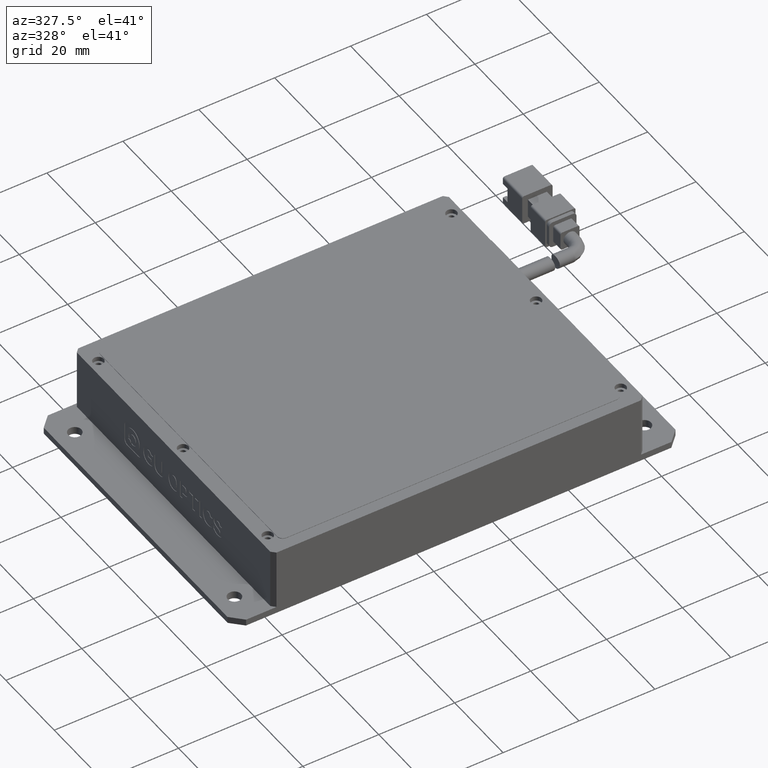
[diagram: clean part render]
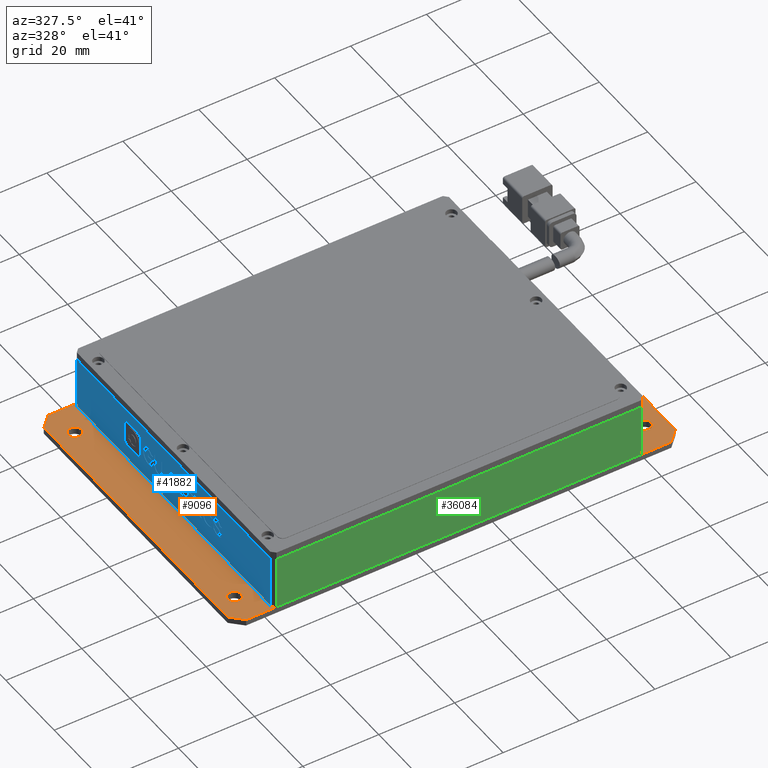
[diagram: same view with three faces highlighted in distinct colors, each labeled with its STEP entity id]
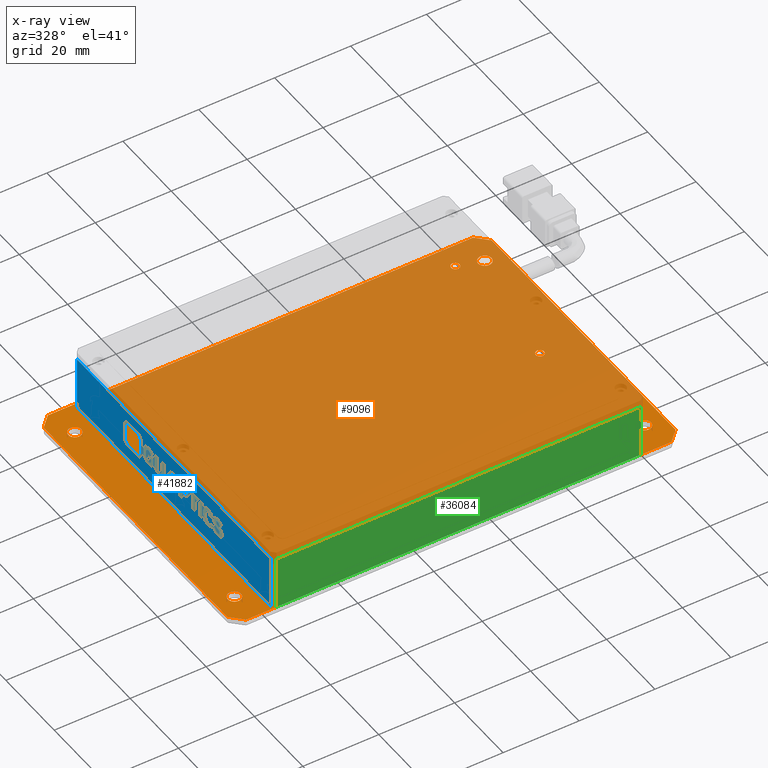
[diagram: x-ray of the same camera — body ghosted, the three highlighted faces saturated]
A machine part, auxiliary view with three faces highlighted in distinct colors.
The next image is the same camera in x-ray (body ghosted, the three faces saturated) — at least one of them is partly hidden behind the body in this view.
Their STEP definitions:

[orange] entity #9096 — the highlighted planar face has unit normal (0, 0, 1).
#45 = EDGE_CURVE ( 'NONE', #28095, #32247, #37792, .T. ) ;
#336 = VERTEX_POINT ( 'NONE', #33495 ) ;
#614 = AXIS2_PLACEMENT_3D ( 'NONE', #19060, #47837, #23226 ) ;
#817 = DIRECTION ( 'NONE',  ( 5.551115123125781500E-017, 1.000000000000000000, 0.0000000000000000000 ) ) ;
#1121 = ORIENTED_EDGE ( 'NONE', *, *, #29711, .T. ) ;
#1138 = CARTESIAN_POINT ( 'NONE',  ( -49.99847269950365100, -33.14700267277579100, -4.485127547138034700E-012 ) ) ;
#1550 = CARTESIAN_POINT ( 'NONE',  ( -43.24847269950363000, -28.14700267277579800, -4.483392823662057900E-012 ) ) ;
#1874 = ORIENTED_EDGE ( 'NONE', *, *, #39447, .T. ) ;
#2609 = CARTESIAN_POINT ( 'NONE',  ( -37.39847269950363500, 4.852997327224197300, -4.485127547138034700E-012 ) ) ;
#2687 = CARTESIAN_POINT ( 'NONE',  ( -49.99847269950363700, 42.85299732722417300, -4.485127547138034700E-012 ) ) ;
#2934 = DIRECTION ( 'NONE',  ( 0.0000000000000000000, 0.0000000000000000000, -1.000000000000000000 ) ) ;
#2997 = VERTEX_POINT ( 'NONE', #38245 ) ;
#3109 = FACE_BOUND ( 'NONE', #24854, .T. ) ;
#3626 = VECTOR ( 'NONE', #31044, 1000.000000000000000 ) ;
#4355 = ORIENTED_EDGE ( 'NONE', *, *, #33716, .T. ) ;
#4383 = FACE_BOUND ( 'NONE', #46158, .T. ) ;
#4388 = VERTEX_POINT ( 'NONE', #37809 ) ;
#4762 = ORIENTED_EDGE ( 'NONE', *, *, #12980, .T. ) ;
#4798 = DIRECTION ( 'NONE',  ( 0.0000000000000000000, 0.0000000000000000000, -1.000000000000000000 ) ) ;
#4835 = DIRECTION ( 'NONE',  ( 1.000000000000000000, -5.551115123125781500E-017, 0.0000000000000000000 ) ) ;
#4852 = VERTEX_POINT ( 'NONE', #49265 ) ;
#4976 = EDGE_LOOP ( 'NONE', ( #11070, #5366 ) ) ;
#5010 = CIRCLE ( 'NONE', #33675, 1.100000000000003600 ) ;
#5021 = CARTESIAN_POINT ( 'NONE',  ( 68.00152730049634900, -36.14700267277581200, -4.485127547138034700E-012 ) ) ;
#5224 = LINE ( 'NONE', #33712, #14914 ) ;
#5253 = DIRECTION ( 'NONE',  ( 0.7071067811865474600, -0.7071067811865474600, -0.0000000000000000000 ) ) ;
#5309 = EDGE_CURVE ( 'NONE', #19071, #52098, #6337, .T. ) ;
#5366 = ORIENTED_EDGE ( 'NONE', *, *, #18745, .T. ) ;
#5901 = CIRCLE ( 'NONE', #34114, 1.750000000000001600 ) ;
#5931 = ORIENTED_EDGE ( 'NONE', *, *, #5309, .T. ) ;
#6019 = EDGE_CURVE ( 'NONE', #49340, #19814, #52558, .T. ) ;
#6337 = CIRCLE ( 'NONE', #32089, 1.749999999999994700 ) ;
#6339 = EDGE_CURVE ( 'NONE', #4388, #6356, #18993, .T. ) ;
#6356 = VERTEX_POINT ( 'NONE', #12895 ) ;
#6477 = EDGE_CURVE ( 'NONE', #32247, #28095, #36317, .T. ) ;
#6555 = CARTESIAN_POINT ( 'NONE',  ( 64.75152730049634900, 37.85299732722420200, -4.483392823662057900E-012 ) ) ;
#6576 = CIRCLE ( 'NONE', #10734, 1.100000000000003600 ) ;
#6797 = EDGE_LOOP ( 'NONE', ( #44400, #37621 ) ) ;
#7017 = CARTESIAN_POINT ( 'NONE',  ( -38.49847269950364400, 39.85299732722418800, -4.485127547138034700E-012 ) ) ;
#7416 = DIRECTION ( 'NONE',  ( 0.0000000000000000000, 0.0000000000000000000, -1.000000000000000000 ) ) ;
#7468 = DIRECTION ( 'NONE',  ( 0.0000000000000000000, 0.0000000000000000000, -1.000000000000000000 ) ) ;
#7553 = EDGE_CURVE ( 'NONE', #52098, #19071, #9624, .T. ) ;
#8418 = DIRECTION ( 'NONE',  ( -0.7071067811865482400, 0.7071067811865469100, 0.0000000000000000000 ) ) ;
#8771 = DIRECTION ( 'NONE',  ( 0.0000000000000000000, 0.0000000000000000000, -1.000000000000000000 ) ) ;
#9096 = ADVANCED_FACE ( 'NONE', ( #26333, #46919, #4383, #35968, #25070, #14083, #3109, #45631, #34675, #23799, #12801 ), #50874, .T. ) ;
#9459 = VECTOR ( 'NONE', #5253, 1000.000000000000100 ) ;
#9624 = CIRCLE ( 'NONE', #614, 1.749999999999994700 ) ;
#10158 = EDGE_LOOP ( 'NONE', ( #18869, #1121 ) ) ;
#10311 = CARTESIAN_POINT ( 'NONE',  ( 65.00152730049634900, -36.14700267277581200, -4.485127547138034700E-012 ) ) ;
#10444 = AXIS2_PLACEMENT_3D ( 'NONE', #33429, #8771, #37596 ) ;
#10734 = AXIS2_PLACEMENT_3D ( 'NONE', #44976, #20378, #49128 ) ;
#10787 = VERTEX_POINT ( 'NONE', #35791 ) ;
#10827 = DIRECTION ( 'NONE',  ( 0.0000000000000000000, 0.0000000000000000000, -1.000000000000000000 ) ) ;
#10879 = DIRECTION ( 'NONE',  ( 0.0000000000000000000, 0.0000000000000000000, -1.000000000000000000 ) ) ;
#11070 = ORIENTED_EDGE ( 'NONE', *, *, #40339, .T. ) ;
#11140 = DIRECTION ( 'NONE',  ( 0.0000000000000000000, 0.0000000000000000000, -1.000000000000000000 ) ) ;
#11178 = DIRECTION ( 'NONE',  ( -1.000000000000000000, 0.0000000000000000000, 0.0000000000000000000 ) ) ;
#11835 = AXIS2_PLACEMENT_3D ( 'NONE', #35563, #10879, #39668 ) ;
#11887 = CARTESIAN_POINT ( 'NONE',  ( -46.99847269950366500, 45.85299732722418000, -4.485127547138034700E-012 ) ) ;
#12801 = FACE_BOUND ( 'NONE', #19139, .T. ) ;
#12823 = CARTESIAN_POINT ( 'NONE',  ( -44.99847269950363700, 37.85299732722420200, -4.483392823662057900E-012 ) ) ;
#12895 = CARTESIAN_POINT ( 'NONE',  ( -46.99847269950365100, 45.85299732722420900, -4.485127547138034700E-012 ) ) ;
#12980 = EDGE_CURVE ( 'NONE', #30058, #41780, #5010, .T. ) ;
#13105 = ORIENTED_EDGE ( 'NONE', *, *, #6339, .T. ) ;
#13360 = VERTEX_POINT ( 'NONE', #17309 ) ;
#13438 = VECTOR ( 'NONE', #8418, 999.9999999999998900 ) ;
#13526 = VERTEX_POINT ( 'NONE', #34558 ) ;
#13738 = ORIENTED_EDGE ( 'NONE', *, *, #17592, .T. ) ;
#13768 = DIRECTION ( 'NONE',  ( 0.0000000000000000000, 0.0000000000000000000, -1.000000000000000000 ) ) ;
#14050 = ORIENTED_EDGE ( 'NONE', *, *, #49422, .T. ) ;
#14083 = FACE_BOUND ( 'NONE', #6797, .T. ) ;
#14447 = ORIENTED_EDGE ( 'NONE', *, *, #19340, .T. ) ;
#14459 = AXIS2_PLACEMENT_3D ( 'NONE', #21740, #50509, #25886 ) ;
#14914 = VECTOR ( 'NONE', #817, 1000.000000000000000 ) ;
#14990 = DIRECTION ( 'NONE',  ( 0.0000000000000000000, 0.0000000000000000000, -1.000000000000000000 ) ) ;
#15904 = LINE ( 'NONE', #10311, #3626 ) ;
#16402 = VERTEX_POINT ( 'NONE', #34204 ) ;
#16827 = CIRCLE ( 'NONE', #14459, 1.750000000000001600 ) ;
#16918 = EDGE_CURVE ( 'NONE', #47433, #47144, #34544, .T. ) ;
#16945 = DIRECTION ( 'NONE',  ( -1.000000000000000000, 0.0000000000000000000, 0.0000000000000000000 ) ) ;
#17055 = CARTESIAN_POINT ( 'NONE',  ( 56.50152730049636300, -30.14700267277581200, -4.485127547138034700E-012 ) ) ;
#17309 = CARTESIAN_POINT ( 'NONE',  ( 55.40152730049635500, 4.852997327224190200, -4.485127547138034700E-012 ) ) ;
#17404 = VERTEX_POINT ( 'NONE', #44894 ) ;
#17592 = EDGE_CURVE ( 'NONE', #34273, #41270, #5224, .T. ) ;
#17969 = AXIS2_PLACEMENT_3D ( 'NONE', #42733, #18115, #46902 ) ;
#18115 = DIRECTION ( 'NONE',  ( 0.0000000000000000000, 0.0000000000000000000, 1.000000000000000000 ) ) ;
#18345 = CARTESIAN_POINT ( 'NONE',  ( -49.99847269950365100, 45.85299732722419500, -4.485127547138034700E-012 ) ) ;
#18745 = EDGE_CURVE ( 'NONE', #40192, #2997, #33915, .T. ) ;
#18869 = ORIENTED_EDGE ( 'NONE', *, *, #42983, .T. ) ;
#18993 = LINE ( 'NONE', #21013, #44724 ) ;
#19060 = CARTESIAN_POINT ( 'NONE',  ( 63.00152730049636300, 37.85299732722420200, -4.483392823662057900E-012 ) ) ;
#19071 = VERTEX_POINT ( 'NONE', #38229 ) ;
#19139 = EDGE_LOOP ( 'NONE', ( #5931, #34937 ) ) ;
#19340 = EDGE_CURVE ( 'NONE', #16402, #17404, #46645, .T. ) ;
#19814 = VERTEX_POINT ( 'NONE', #23251 ) ;
#19859 = AXIS2_PLACEMENT_3D ( 'NONE', #38413, #13768, #42525 ) ;
#20113 = ORIENTED_EDGE ( 'NONE', *, *, #23189, .T. ) ;
#20198 = DIRECTION ( 'NONE',  ( 0.0000000000000000000, 0.0000000000000000000, -1.000000000000000000 ) ) ;
#20378 = DIRECTION ( 'NONE',  ( 0.0000000000000000000, 0.0000000000000000000, -1.000000000000000000 ) ) ;
#20877 = ORIENTED_EDGE ( 'NONE', *, *, #45047, .T. ) ;
#21013 = CARTESIAN_POINT ( 'NONE',  ( 68.00152730049634900, 45.85299732722419500, -4.485127547138034700E-012 ) ) ;
#21223 = DIRECTION ( 'NONE',  ( -1.000000000000000000, 0.0000000000000000000, 0.0000000000000000000 ) ) ;
#21236 = ORIENTED_EDGE ( 'NONE', *, *, #25879, .T. ) ;
#21740 = CARTESIAN_POINT ( 'NONE',  ( -44.99847269950363700, -28.14700267277579800, -4.483392823662057900E-012 ) ) ;
#21930 = CARTESIAN_POINT ( 'NONE',  ( 63.00152730049636300, -28.14700267277580500, -4.483392823662057900E-012 ) ) ;
#22945 = DIRECTION ( 'NONE',  ( 0.0000000000000000000, 0.0000000000000000000, -1.000000000000000000 ) ) ;
#23189 = EDGE_CURVE ( 'NONE', #41270, #4388, #44950, .T. ) ;
#23208 = ORIENTED_EDGE ( 'NONE', *, *, #24977, .T. ) ;
#23226 = DIRECTION ( 'NONE',  ( -1.000000000000000000, 0.0000000000000000000, 0.0000000000000000000 ) ) ;
#23251 = CARTESIAN_POINT ( 'NONE',  ( -49.99847269950366500, -33.14700267277579100, -4.484802286486289100E-012 ) ) ;
#23293 = AXIS2_PLACEMENT_3D ( 'NONE', #32056, #7416, #36232 ) ;
#23569 = AXIS2_PLACEMENT_3D ( 'NONE', #12823, #41563, #16945 ) ;
#23799 = FACE_BOUND ( 'NONE', #44789, .T. ) ;
#23893 = CARTESIAN_POINT ( 'NONE',  ( -37.39847269950363500, -30.14700267277580500, -4.485127547138034700E-012 ) ) ;
#24601 = LINE ( 'NONE', #5021, #35494 ) ;
#24675 = CARTESIAN_POINT ( 'NONE',  ( -38.49847269950364400, -30.14700267277580500, -4.485127547138034700E-012 ) ) ;
#24756 = ORIENTED_EDGE ( 'NONE', *, *, #6019, .T. ) ;
#24769 = ORIENTED_EDGE ( 'NONE', *, *, #26861, .T. ) ;
#24854 = EDGE_LOOP ( 'NONE', ( #37901, #4762 ) ) ;
#24977 = EDGE_CURVE ( 'NONE', #38067, #45668, #33601, .T. ) ;
#25070 = FACE_BOUND ( 'NONE', #4976, .T. ) ;
#25344 = EDGE_CURVE ( 'NONE', #41780, #30058, #41539, .T. ) ;
#25879 = EDGE_CURVE ( 'NONE', #47144, #47433, #40213, .T. ) ;
#25886 = DIRECTION ( 'NONE',  ( -1.000000000000000000, 0.0000000000000000000, 0.0000000000000000000 ) ) ;
#26073 = DIRECTION ( 'NONE',  ( -1.000000000000000000, 0.0000000000000000000, 0.0000000000000000000 ) ) ;
#26333 = FACE_OUTER_BOUND ( 'NONE', #35352, .T. ) ;
#26529 = CIRCLE ( 'NONE', #34181, 1.749999999999994700 ) ;
#26861 = EDGE_CURVE ( 'NONE', #4852, #13526, #24601, .T. ) ;
#27643 = CARTESIAN_POINT ( 'NONE',  ( 63.00152730049636300, 37.85299732722420200, -4.483392823662057900E-012 ) ) ;
#28095 = VERTEX_POINT ( 'NONE', #43610 ) ;
#28384 = EDGE_LOOP ( 'NONE', ( #14050, #23208 ) ) ;
#28430 = CARTESIAN_POINT ( 'NONE',  ( 57.60152730049636500, -30.14700267277581200, -4.485127547138034700E-012 ) ) ;
#28775 = DIRECTION ( 'NONE',  ( -1.000000000000000000, 0.0000000000000000000, 0.0000000000000000000 ) ) ;
#28836 = EDGE_LOOP ( 'NONE', ( #52520, #45965 ) ) ;
#29499 = CARTESIAN_POINT ( 'NONE',  ( -38.49847269950364400, 4.852997327224197300, -4.485127547138034700E-012 ) ) ;
#29711 = EDGE_CURVE ( 'NONE', #30803, #51991, #6576, .T. ) ;
#30058 = VERTEX_POINT ( 'NONE', #34526 ) ;
#30656 = EDGE_CURVE ( 'NONE', #13526, #34273, #15904, .T. ) ;
#30803 = VERTEX_POINT ( 'NONE', #23893 ) ;
#31044 = DIRECTION ( 'NONE',  ( 0.7071067811865479100, 0.7071067811865471300, 0.0000000000000000000 ) ) ;
#31372 = LINE ( 'NONE', #1138, #9459 ) ;
#31754 = DIRECTION ( 'NONE',  ( -1.000000000000000000, 0.0000000000000000000, 0.0000000000000000000 ) ) ;
#32026 = EDGE_CURVE ( 'NONE', #40480, #10787, #16827, .T. ) ;
#32056 = CARTESIAN_POINT ( 'NONE',  ( 63.00152730049636300, -28.14700267277580500, -4.483392823662057900E-012 ) ) ;
#32089 = AXIS2_PLACEMENT_3D ( 'NONE', #27643, #2934, #31754 ) ;
#32099 = CARTESIAN_POINT ( 'NONE',  ( -44.99847269950363700, -28.14700267277579800, -4.483392823662057900E-012 ) ) ;
#32127 = EDGE_CURVE ( 'NONE', #13360, #336, #49002, .T. ) ;
#32247 = VERTEX_POINT ( 'NONE', #36045 ) ;
#32425 = CARTESIAN_POINT ( 'NONE',  ( 68.00152730049634900, 42.85299732722420200, -4.484802286486289100E-012 ) ) ;
#33021 = ORIENTED_EDGE ( 'NONE', *, *, #32026, .T. ) ;
#33054 = CARTESIAN_POINT ( 'NONE',  ( 68.00152730049636300, 42.85299732722420200, -4.485127547138034700E-012 ) ) ;
#33429 = CARTESIAN_POINT ( 'NONE',  ( 56.50152730049636300, -30.14700267277581200, -4.485127547138034700E-012 ) ) ;
#33495 = CARTESIAN_POINT ( 'NONE',  ( 57.60152730049636500, 4.852997327224190200, -4.485127547138034700E-012 ) ) ;
#33593 = DIRECTION ( 'NONE',  ( -1.000000000000000000, 0.0000000000000000000, 0.0000000000000000000 ) ) ;
#33601 = CIRCLE ( 'NONE', #23569, 1.750000000000001600 ) ;
#33675 = AXIS2_PLACEMENT_3D ( 'NONE', #39625, #14990, #43756 ) ;
#33712 = CARTESIAN_POINT ( 'NONE',  ( 68.00152730049634900, 45.85299732722419500, -4.485127547138034700E-012 ) ) ;
#33716 = EDGE_CURVE ( 'NONE', #19814, #4852, #31372, .T. ) ;
#33915 = CIRCLE ( 'NONE', #39393, 1.100000000000003600 ) ;
#34114 = AXIS2_PLACEMENT_3D ( 'NONE', #32099, #7468, #36274 ) ;
#34181 = AXIS2_PLACEMENT_3D ( 'NONE', #21930, #50703, #26073 ) ;
#34204 = CARTESIAN_POINT ( 'NONE',  ( 64.75152730049634900, -28.14700267277580500, -4.483392823662057900E-012 ) ) ;
#34273 = VERTEX_POINT ( 'NONE', #37623 ) ;
#34526 = CARTESIAN_POINT ( 'NONE',  ( 57.60152730049636500, 39.85299732722418800, -4.485127547138034700E-012 ) ) ;
#34544 = CIRCLE ( 'NONE', #48220, 1.100000000000003600 ) ;
#34558 = CARTESIAN_POINT ( 'NONE',  ( 65.00152730049634900, -36.14700267277581200, -4.484802286486289100E-012 ) ) ;
#34675 = FACE_BOUND ( 'NONE', #28384, .T. ) ;
#34937 = ORIENTED_EDGE ( 'NONE', *, *, #7553, .T. ) ;
#35352 = EDGE_LOOP ( 'NONE', ( #13738, #20113, #13105, #42438, #24756, #4355, #24769, #50445 ) ) ;
#35494 = VECTOR ( 'NONE', #4835, 1000.000000000000000 ) ;
#35505 = CARTESIAN_POINT ( 'NONE',  ( 56.50152730049636300, 4.852997327224190200, -4.485127547138034700E-012 ) ) ;
#35563 = CARTESIAN_POINT ( 'NONE',  ( -38.49847269950364400, 4.852997327224197300, -4.485127547138034700E-012 ) ) ;
#35791 = CARTESIAN_POINT ( 'NONE',  ( -46.74847269950363700, -28.14700267277579800, -4.483392823662057900E-012 ) ) ;
#35802 = CARTESIAN_POINT ( 'NONE',  ( 56.50152730049636300, 39.85299732722418800, -4.485127547138034700E-012 ) ) ;
#35841 = DIRECTION ( 'NONE',  ( 0.0000000000000000000, 0.0000000000000000000, -1.000000000000000000 ) ) ;
#35905 = CIRCLE ( 'NONE', #10444, 1.100000000000003600 ) ;
#35968 = FACE_BOUND ( 'NONE', #28836, .T. ) ;
#36002 = CARTESIAN_POINT ( 'NONE',  ( 55.40152730049635500, 39.85299732722418800, -4.485127547138034700E-012 ) ) ;
#36045 = CARTESIAN_POINT ( 'NONE',  ( -39.59847269950364500, 39.85299732722418800, -4.485127547138034700E-012 ) ) ;
#36232 = DIRECTION ( 'NONE',  ( -1.000000000000000000, 0.0000000000000000000, 0.0000000000000000000 ) ) ;
#36274 = DIRECTION ( 'NONE',  ( -1.000000000000000000, 0.0000000000000000000, 0.0000000000000000000 ) ) ;
#36317 = CIRCLE ( 'NONE', #19859, 1.100000000000003600 ) ;
#36799 = CARTESIAN_POINT ( 'NONE',  ( -43.24847269950363000, 37.85299732722420200, -4.483392823662057900E-012 ) ) ;
#37180 = AXIS2_PLACEMENT_3D ( 'NONE', #24675, #53425, #28775 ) ;
#37596 = DIRECTION ( 'NONE',  ( -1.000000000000000000, 0.0000000000000000000, 0.0000000000000000000 ) ) ;
#37621 = ORIENTED_EDGE ( 'NONE', *, *, #38441, .T. ) ;
#37623 = CARTESIAN_POINT ( 'NONE',  ( 68.00152730049634900, -33.14700267277581200, -4.484477025834543400E-012 ) ) ;
#37792 = CIRCLE ( 'NONE', #51593, 1.100000000000003600 ) ;
#37809 = CARTESIAN_POINT ( 'NONE',  ( 65.00152730049636300, 45.85299732722419500, -4.484802286486289100E-012 ) ) ;
#37901 = ORIENTED_EDGE ( 'NONE', *, *, #25344, .T. ) ;
#38067 = VERTEX_POINT ( 'NONE', #36799 ) ;
#38229 = CARTESIAN_POINT ( 'NONE',  ( 61.25152730049637000, 37.85299732722420200, -4.483392823662057900E-012 ) ) ;
#38245 = CARTESIAN_POINT ( 'NONE',  ( 55.40152730049635500, -30.14700267277581200, -4.485127547138034700E-012 ) ) ;
#38413 = CARTESIAN_POINT ( 'NONE',  ( -38.49847269950364400, 39.85299732722418800, -4.485127547138034700E-012 ) ) ;
#38441 = EDGE_CURVE ( 'NONE', #336, #13360, #41861, .T. ) ;
#38554 = LINE ( 'NONE', #11887, #46949 ) ;
#38595 = AXIS2_PLACEMENT_3D ( 'NONE', #47563, #22945, #51716 ) ;
#39393 = AXIS2_PLACEMENT_3D ( 'NONE', #17055, #45863, #21223 ) ;
#39447 = EDGE_CURVE ( 'NONE', #17404, #16402, #26529, .T. ) ;
#39622 = DIRECTION ( 'NONE',  ( -1.000000000000000000, 0.0000000000000000000, 0.0000000000000000000 ) ) ;
#39625 = CARTESIAN_POINT ( 'NONE',  ( 56.50152730049636300, 39.85299732722418800, -4.485127547138034700E-012 ) ) ;
#39668 = DIRECTION ( 'NONE',  ( -1.000000000000000000, 0.0000000000000000000, 0.0000000000000000000 ) ) ;
#39902 = DIRECTION ( 'NONE',  ( -1.000000000000000000, 0.0000000000000000000, 0.0000000000000000000 ) ) ;
#40192 = VERTEX_POINT ( 'NONE', #28430 ) ;
#40213 = CIRCLE ( 'NONE', #11835, 1.100000000000003600 ) ;
#40339 = EDGE_CURVE ( 'NONE', #2997, #40192, #35905, .T. ) ;
#40480 = VERTEX_POINT ( 'NONE', #1550 ) ;
#41270 = VERTEX_POINT ( 'NONE', #32425 ) ;
#41341 = CARTESIAN_POINT ( 'NONE',  ( -39.59847269950364500, 4.852997327224197300, -4.485127547138034700E-012 ) ) ;
#41539 = CIRCLE ( 'NONE', #51826, 1.100000000000003600 ) ;
#41563 = DIRECTION ( 'NONE',  ( 0.0000000000000000000, 0.0000000000000000000, -1.000000000000000000 ) ) ;
#41780 = VERTEX_POINT ( 'NONE', #36002 ) ;
#41861 = CIRCLE ( 'NONE', #38595, 1.100000000000003600 ) ;
#42400 = ORIENTED_EDGE ( 'NONE', *, *, #16918, .T. ) ;
#42438 = ORIENTED_EDGE ( 'NONE', *, *, #49442, .T. ) ;
#42525 = DIRECTION ( 'NONE',  ( -1.000000000000000000, 0.0000000000000000000, 0.0000000000000000000 ) ) ;
#42733 = CARTESIAN_POINT ( 'NONE',  ( 68.00152730049634900, 45.85299732722419500, -4.485127547138034700E-012 ) ) ;
#42791 = DIRECTION ( 'NONE',  ( -5.551115123125781500E-017, -1.000000000000000000, -0.0000000000000000000 ) ) ;
#42983 = EDGE_CURVE ( 'NONE', #51991, #30803, #52037, .T. ) ;
#43610 = CARTESIAN_POINT ( 'NONE',  ( -37.39847269950363500, 39.85299732722418800, -4.485127547138034700E-012 ) ) ;
#43756 = DIRECTION ( 'NONE',  ( -1.000000000000000000, 0.0000000000000000000, 0.0000000000000000000 ) ) ;
#44400 = ORIENTED_EDGE ( 'NONE', *, *, #32127, .T. ) ;
#44724 = VECTOR ( 'NONE', #49777, 1000.000000000000000 ) ;
#44762 = AXIS2_PLACEMENT_3D ( 'NONE', #44806, #20198, #48954 ) ;
#44789 = EDGE_LOOP ( 'NONE', ( #1874, #14447 ) ) ;
#44806 = CARTESIAN_POINT ( 'NONE',  ( -44.99847269950363700, 37.85299732722420200, -4.483392823662057900E-012 ) ) ;
#44894 = CARTESIAN_POINT ( 'NONE',  ( 61.25152730049637000, -28.14700267277580500, -4.483392823662057900E-012 ) ) ;
#44950 = LINE ( 'NONE', #33054, #13438 ) ;
#44976 = CARTESIAN_POINT ( 'NONE',  ( -38.49847269950364400, -30.14700267277580500, -4.485127547138034700E-012 ) ) ;
#45047 = EDGE_CURVE ( 'NONE', #10787, #40480, #5901, .T. ) ;
#45631 = FACE_BOUND ( 'NONE', #46438, .T. ) ;
#45668 = VERTEX_POINT ( 'NONE', #52864 ) ;
#45863 = DIRECTION ( 'NONE',  ( 0.0000000000000000000, 0.0000000000000000000, -1.000000000000000000 ) ) ;
#45965 = ORIENTED_EDGE ( 'NONE', *, *, #45, .T. ) ;
#46158 = EDGE_LOOP ( 'NONE', ( #21236, #42400 ) ) ;
#46438 = EDGE_LOOP ( 'NONE', ( #20877, #33021 ) ) ;
#46645 = CIRCLE ( 'NONE', #23293, 1.749999999999994700 ) ;
#46758 = CARTESIAN_POINT ( 'NONE',  ( -39.59847269950364500, -30.14700267277580500, -4.485127547138034700E-012 ) ) ;
#46902 = DIRECTION ( 'NONE',  ( 1.000000000000000000, -5.551115123125781500E-017, 0.0000000000000000000 ) ) ;
#46919 = FACE_BOUND ( 'NONE', #10158, .T. ) ;
#46949 = VECTOR ( 'NONE', #53114, 1000.000000000000100 ) ;
#47144 = VERTEX_POINT ( 'NONE', #41341 ) ;
#47433 = VERTEX_POINT ( 'NONE', #2609 ) ;
#47563 = CARTESIAN_POINT ( 'NONE',  ( 56.50152730049636300, 4.852997327224190200, -4.485127547138034700E-012 ) ) ;
#47575 = AXIS2_PLACEMENT_3D ( 'NONE', #35505, #10827, #39622 ) ;
#47837 = DIRECTION ( 'NONE',  ( 0.0000000000000000000, 0.0000000000000000000, -1.000000000000000000 ) ) ;
#48220 = AXIS2_PLACEMENT_3D ( 'NONE', #29499, #4798, #33593 ) ;
#48229 = CIRCLE ( 'NONE', #44762, 1.750000000000001600 ) ;
#48954 = DIRECTION ( 'NONE',  ( -1.000000000000000000, 0.0000000000000000000, 0.0000000000000000000 ) ) ;
#49002 = CIRCLE ( 'NONE', #47575, 1.100000000000003600 ) ;
#49128 = DIRECTION ( 'NONE',  ( -1.000000000000000000, 0.0000000000000000000, 0.0000000000000000000 ) ) ;
#49265 = CARTESIAN_POINT ( 'NONE',  ( -46.99847269950363700, -36.14700267277580500, -4.484477025834543400E-012 ) ) ;
#49340 = VERTEX_POINT ( 'NONE', #2687 ) ;
#49422 = EDGE_CURVE ( 'NONE', #45668, #38067, #48229, .T. ) ;
#49442 = EDGE_CURVE ( 'NONE', #6356, #49340, #38554, .T. ) ;
#49777 = DIRECTION ( 'NONE',  ( -1.000000000000000000, 5.551115123125781500E-017, -0.0000000000000000000 ) ) ;
#50445 = ORIENTED_EDGE ( 'NONE', *, *, #30656, .T. ) ;
#50509 = DIRECTION ( 'NONE',  ( 0.0000000000000000000, 0.0000000000000000000, -1.000000000000000000 ) ) ;
#50703 = DIRECTION ( 'NONE',  ( 0.0000000000000000000, 0.0000000000000000000, -1.000000000000000000 ) ) ;
#50874 = PLANE ( 'NONE',  #17969 ) ;
#51268 = VECTOR ( 'NONE', #42791, 1000.000000000000000 ) ;
#51593 = AXIS2_PLACEMENT_3D ( 'NONE', #7017, #35841, #11178 ) ;
#51716 = DIRECTION ( 'NONE',  ( -1.000000000000000000, 0.0000000000000000000, 0.0000000000000000000 ) ) ;
#51826 = AXIS2_PLACEMENT_3D ( 'NONE', #35802, #11140, #39902 ) ;
#51991 = VERTEX_POINT ( 'NONE', #46758 ) ;
#52037 = CIRCLE ( 'NONE', #37180, 1.100000000000003600 ) ;
#52098 = VERTEX_POINT ( 'NONE', #6555 ) ;
#52520 = ORIENTED_EDGE ( 'NONE', *, *, #6477, .T. ) ;
#52558 = LINE ( 'NONE', #18345, #51268 ) ;
#52864 = CARTESIAN_POINT ( 'NONE',  ( -46.74847269950363700, 37.85299732722420200, -4.483392823662057900E-012 ) ) ;
#53114 = DIRECTION ( 'NONE',  ( -0.7071067811865459100, -0.7071067811865491300, 0.0000000000000000000 ) ) ;
#53425 = DIRECTION ( 'NONE',  ( 0.0000000000000000000, 0.0000000000000000000, -1.000000000000000000 ) ) ;

[blue] entity #41882 — the highlighted planar face has unit normal (1, 0, 0).
#80 = CARTESIAN_POINT ( 'NONE',  ( -39.99847269950363700, -12.73044029864745000, 4.877176961010885500 ) ) ;
#81 = B_SPLINE_CURVE_WITH_KNOTS ( 'NONE', 3,
 ( #1530, #38433, #42557, #5650 ),
 .UNSPECIFIED., .F., .F.,
 ( 4, 4 ),
 ( 4.000000000000000000, 5.000000000000000000 ),
 .UNSPECIFIED. ) ;
#127 = ORIENTED_EDGE ( 'NONE', *, *, #44102, .F. ) ;
#381 = VERTEX_POINT ( 'NONE', #37850 ) ;
#442 = B_SPLINE_CURVE_WITH_KNOTS ( 'NONE', 3,
 ( #19186, #43619, #23345, #27453 ),
 .UNSPECIFIED., .F., .F.,
 ( 4, 4 ),
 ( 3.000000000000000000, 4.000000000000000000 ),
 .UNSPECIFIED. ) ;
#559 = EDGE_CURVE ( 'NONE', #31481, #14052, #44163, .T. ) ;
#581 = CARTESIAN_POINT ( 'NONE',  ( -39.99847269950363700, -13.36844732947485600, 9.565549054034109500 ) ) ;
#637 = EDGE_CURVE ( 'NONE', #36898, #31481, #27996, .T. ) ;
#642 = CARTESIAN_POINT ( 'NONE',  ( -39.99847269950363700, 2.154483984748920100, 9.502758356359761300 ) ) ;
#682 = VECTOR ( 'NONE', #49061, 1000.000000000000000 ) ;
#714 = EDGE_CURVE ( 'NONE', #23731, #36898, #29881, .T. ) ;
#800 = FACE_BOUND ( 'NONE', #51021, .T. ) ;
#915 = CARTESIAN_POINT ( 'NONE',  ( -39.99847269950363700, -9.424193678852846600, 8.916711844731812800 ) ) ;
#921 = CARTESIAN_POINT ( 'NONE',  ( -39.99847269950363700, -9.619501953596287800, 5.526014170313176000 ) ) ;
#1152 = B_SPLINE_CURVE_WITH_KNOTS ( 'NONE', 3,
 ( #25556, #50175, #42036, #17416 ),
 .UNSPECIFIED., .F., .F.,
 ( 4, 4 ),
 ( 8.000000000000000000, 9.000000000000000000 ),
 .UNSPECIFIED. ) ;
#1252 = EDGE_CURVE ( 'NONE', #43891, #48310, #49203, .T. ) ;
#1292 = CARTESIAN_POINT ( 'NONE',  ( -39.99847269950363700, -12.74358253769570300, 8.330665333103885600 ) ) ;
#1299 = CARTESIAN_POINT ( 'NONE',  ( -39.99847269950363700, 15.21713947420265400, 9.565549054034207200 ) ) ;
#1325 = EDGE_CURVE ( 'NONE', #23665, #23864, #36977, .T. ) ;
#1442 = EDGE_CURVE ( 'NONE', #23115, #43891, #16983, .T. ) ;
#1530 = CARTESIAN_POINT ( 'NONE',  ( -39.99847269950363700, 9.847561323851225600, 6.677176961010958100 ) ) ;
#1615 = CARTESIAN_POINT ( 'NONE',  ( -39.99847269950363700, -5.890026561492400800, 5.002758356359729300 ) ) ;
#1818 = B_SPLINE_CURVE_WITH_KNOTS ( 'NONE', 3,
 ( #8328, #32959, #41246, #16619 ),
 .UNSPECIFIED., .F., .F.,
 ( 4, 4 ),
 ( 8.000000000000000000, 9.000000000000000000 ),
 .UNSPECIFIED. ) ;
#2031 = ORIENTED_EDGE ( 'NONE', *, *, #16892, .F. ) ;
#2114 = CARTESIAN_POINT ( 'NONE',  ( -39.99847269950363700, 23.87110651492885800, 3.984932779793926500 ) ) ;
#2201 = CARTESIAN_POINT ( 'NONE',  ( -39.99847269950363700, 15.21713947420265700, 8.937642077290011100 ) ) ;
#2347 = VECTOR ( 'NONE', #36737, 1000.000000000000000 ) ;
#2370 = CARTESIAN_POINT ( 'NONE',  ( -39.99847269950363700, -5.343285079610252500, 8.874851379615543900 ) ) ;
#2430 = ORIENTED_EDGE ( 'NONE', *, *, #1252, .F. ) ;
#2433 = ORIENTED_EDGE ( 'NONE', *, *, #21677, .F. ) ;
#2597 = ORIENTED_EDGE ( 'NONE', *, *, #14450, .F. ) ;
#2697 = VECTOR ( 'NONE', #53132, 1000.000000000000000 ) ;
#2752 = LINE ( 'NONE', #642, #45265 ) ;
#2819 = CARTESIAN_POINT ( 'NONE',  ( -39.99847269950363700, 15.92000588848097000, 5.595680206008264400 ) ) ;
#2867 = CARTESIAN_POINT ( 'NONE',  ( -39.99847269950363700, 15.15848614808057700, 4.919037426127238700 ) ) ;
#2883 = VERTEX_POINT ( 'NONE', #27513 ) ;
#2986 = CARTESIAN_POINT ( 'NONE',  ( -39.99847269950363700, 15.43191773272045000, 7.598107193569105400 ) ) ;
#3013 = VERTEX_POINT ( 'NONE', #50691 ) ;
#3038 = CARTESIAN_POINT ( 'NONE',  ( -39.99847269950363700, -13.36844732947485600, 9.565549054034109500 ) ) ;
#3068 = DIRECTION ( 'NONE',  ( -0.0000000000000000000, -1.000000000000000000, -0.0000000000000000000 ) ) ;
#3162 = CARTESIAN_POINT ( 'NONE',  ( -39.99847269950363700, 0.3386646229317502600, 6.572525798220193700 ) ) ;
#3235 = ORIENTED_EDGE ( 'NONE', *, *, #41082, .F. ) ;
#3283 = CARTESIAN_POINT ( 'NONE',  ( -39.99847269950363700, -1.633523046078680300, 9.502758356359747100 ) ) ;
#3293 = ORIENTED_EDGE ( 'NONE', *, *, #31884, .F. ) ;
#3332 = LINE ( 'NONE', #20759, #45869 ) ;
#3499 = CARTESIAN_POINT ( 'NONE',  ( -39.99847269950363700, -13.34885565830146200, 5.505083937755027400 ) ) ;
#3600 = DIRECTION ( 'NONE',  ( -0.0000000000000000000, -1.000000000000000000, -0.0000000000000000000 ) ) ;
#3631 = DIRECTION ( 'NONE',  ( -0.0000000000000000000, -0.0000000000000000000, 1.000000000000000000 ) ) ;
#3666 = CARTESIAN_POINT ( 'NONE',  ( -39.99847269950363700, 14.29937311400807500, 8.246944402871408300 ) ) ;
#3721 = CARTESIAN_POINT ( 'NONE',  ( -39.99847269950363700, 6.853807943645533000, 8.728339751708620800 ) ) ;
#3814 = VERTEX_POINT ( 'NONE', #2867 ) ;
#3890 = DIRECTION ( 'NONE',  ( -0.0000000000000000000, 4.604512930062087100E-015, -1.000000000000000000 ) ) ;
#3896 = EDGE_CURVE ( 'NONE', #22095, #16356, #23542, .T. ) ;
#3981 = CARTESIAN_POINT ( 'NONE',  ( -39.99847269950363700, 16.53842124813476400, 4.974952785781125500 ) ) ;
#4036 = CARTESIAN_POINT ( 'NONE',  ( -39.99847269950363700, -11.78687620995089900, 8.330665333103885600 ) ) ;
#4053 = DIRECTION ( 'NONE',  ( -0.0000000000000000000, -4.068266882200322300E-015, 1.000000000000000000 ) ) ;
#4118 = DIRECTION ( 'NONE',  ( -0.0000000000000000000, 1.000000000000000000, 3.254613587978446500E-015 ) ) ;
#4142 = VERTEX_POINT ( 'NONE', #50390 ) ;
#4445 = LINE ( 'NONE', #8540, #26392 ) ;
#4480 = VECTOR ( 'NONE', #40926, 1000.000000000000000 ) ;
#4495 = LINE ( 'NONE', #18178, #36079 ) ;
#4558 = B_SPLINE_CURVE_WITH_KNOTS ( 'NONE', 3,
 ( #15384, #19537, #48309, #23734 ),
 .UNSPECIFIED., .F., .F.,
 ( 4, 4 ),
 ( 1.000000000000000000, 2.000000000000000000 ),
 .UNSPECIFIED. ) ;
#4632 = CARTESIAN_POINT ( 'NONE',  ( -39.99847269950363700, -3.019785890859605400, 5.002758356359743500 ) ) ;
#4646 = ORIENTED_EDGE ( 'NONE', *, *, #51726, .F. ) ;
#4657 = CARTESIAN_POINT ( 'NONE',  ( -39.99847269950363700, -12.74358253769570300, 8.330665333103885600 ) ) ;
#4679 = AXIS2_PLACEMENT_3D ( 'NONE', #36534, #11873, #40651 ) ;
#4996 = VERTEX_POINT ( 'NONE', #50166 ) ;
#5046 = ORIENTED_EDGE ( 'NONE', *, *, #38136, .F. ) ;
#5128 = LINE ( 'NONE', #8046, #45051 ) ;
#5146 = EDGE_CURVE ( 'NONE', #10977, #5382, #81, .T. ) ;
#5275 = DIRECTION ( 'NONE',  ( -0.0000000000000000000, -0.0000000000000000000, -1.000000000000000000 ) ) ;
#5332 = CARTESIAN_POINT ( 'NONE',  ( -39.99847269950363700, -3.019785890859619100, 8.874851379615551000 ) ) ;
#5342 = CARTESIAN_POINT ( 'NONE',  ( -39.99847269950363700, -13.98016988220652300, 6.788703461822101400 ) ) ;
#5382 = VERTEX_POINT ( 'NONE', #32639 ) ;
#5613 = CARTESIAN_POINT ( 'NONE',  ( -39.99847269950363700, -1.184374857868826500, 8.037642077289969900 ) ) ;
#5650 = CARTESIAN_POINT ( 'NONE',  ( -39.99847269950363700, 10.80438933899441300, 5.526014170313252400 ) ) ;
#5661 = ORIENTED_EDGE ( 'NONE', *, *, #714, .F. ) ;
#5688 = CARTESIAN_POINT ( 'NONE',  ( -39.99847269950363700, 9.847561323851215000, 9.502758356359789700 ) ) ;
#5730 = DIRECTION ( 'NONE',  ( -0.0000000000000000000, 1.000000000000000000, 7.403568959474705300E-015 ) ) ;
#5772 = ORIENTED_EDGE ( 'NONE', *, *, #40936, .F. ) ;
#5859 = ORIENTED_EDGE ( 'NONE', *, *, #38660, .F. ) ;
#5926 = ORIENTED_EDGE ( 'NONE', *, *, #3896, .F. ) ;
#5974 = CARTESIAN_POINT ( 'NONE',  ( -39.99847269950363700, 17.25455158885923600, 8.728339751708654500 ) ) ;
#5978 = VERTEX_POINT ( 'NONE', #5688 ) ;
#5987 = EDGE_CURVE ( 'NONE', #28382, #35393, #15210, .T. ) ;
#6172 = DIRECTION ( 'NONE',  ( -0.0000000000000000000, 3.083952846180987300E-015, -1.000000000000000000 ) ) ;
#6180 = ORIENTED_EDGE ( 'NONE', *, *, #28273, .F. ) ;
#6235 = EDGE_CURVE ( 'NONE', #15548, #29641, #8354, .T. ) ;
#6271 = CARTESIAN_POINT ( 'NONE',  ( -39.99847269950363700, 4.829538068037209100, 4.919037426127204100 ) ) ;
#6301 = EDGE_CURVE ( 'NONE', #7919, #24030, #12512, .T. ) ;
#6321 = CARTESIAN_POINT ( 'NONE',  ( -39.99847269950363700, 14.44284255695004200, 8.707409519150479200 ) ) ;
#6443 = CARTESIAN_POINT ( 'NONE',  ( -39.99847269950363700, 16.33009242174220400, 8.302555544028797000 ) ) ;
#6466 = CARTESIAN_POINT ( 'NONE',  ( -39.99847269950363700, -9.365662040129354400, 9.565549054034123700 ) ) ;
#6559 = EDGE_LOOP ( 'NONE', ( #33908, #37891, #5661, #43194, #30408, #33623, #29753, #9477, #39445, #5046 ) ) ;
#6599 = CARTESIAN_POINT ( 'NONE',  ( -39.99847269950363700, -15.20385836246562800, 6.258572309848068100 ) ) ;
#6735 = CARTESIAN_POINT ( 'NONE',  ( -39.99847269950363700, 13.30360513131489200, 7.598107193569098200 ) ) ;
#6772 = ORIENTED_EDGE ( 'NONE', *, *, #6301, .F. ) ;
#6803 = CARTESIAN_POINT ( 'NONE',  ( -39.99847269950363700, -9.619501953596287800, 5.526014170313176000 ) ) ;
#6826 = CARTESIAN_POINT ( 'NONE',  ( -39.99847269950363700, -9.365662040129354400, 9.565549054034123700 ) ) ;
#6899 = B_SPLINE_CURVE_WITH_KNOTS ( 'NONE', 3,
 ( #3162, #27849, #7279, #36121 ),
 .UNSPECIFIED., .F., .F.,
 ( 4, 4 ),
 ( 6.000000000000000000, 7.000000000000000000 ),
 .UNSPECIFIED. ) ;
#6957 = CARTESIAN_POINT ( 'NONE',  ( -39.99847269950363700, 15.13901616430546300, 5.526014170313266600 ) ) ;
#7279 = CARTESIAN_POINT ( 'NONE',  ( -39.99847269950363700, -1.210294273769070500, 7.032990914499250400 ) ) ;
#7299 = VERTEX_POINT ( 'NONE', #25600 ) ;
#7370 = B_SPLINE_CURVE_WITH_KNOTS ( 'NONE', 3,
 ( #3038, #23635, #35992, #11319 ),
 .UNSPECIFIED., .F., .F.,
 ( 4, 4 ),
 ( 5.000000000000000000, 6.000000000000000000 ),
 .UNSPECIFIED. ) ;
#7373 = CARTESIAN_POINT ( 'NONE',  ( -39.99847269950363700, -11.22066474429362500, 8.079502542406247700 ) ) ;
#7395 = CARTESIAN_POINT ( 'NONE',  ( -39.99847269950363700, -5.890026561492415000, 9.502758356359732900 ) ) ;
#7412 = CARTESIAN_POINT ( 'NONE',  ( -39.99847269950363700, 0.3386646229317502600, 6.572525798220193700 ) ) ;
#7425 = EDGE_CURVE ( 'NONE', #45344, #3013, #4495, .T. ) ;
#7501 = VERTEX_POINT ( 'NONE', #47491 ) ;
#7547 = VERTEX_POINT ( 'NONE', #18880 ) ;
#7651 = CARTESIAN_POINT ( 'NONE',  ( -39.99847269950363700, 13.32319680248838100, 8.246944402871408300 ) ) ;
#7662 = EDGE_CURVE ( 'NONE', #31245, #23067, #32113, .T. ) ;
#7669 = CARTESIAN_POINT ( 'NONE',  ( -39.99847269950363700, 4.829538068037209100, 4.919037426127204100 ) ) ;
#7693 = LINE ( 'NONE', #32108, #17389 ) ;
#7787 = CARTESIAN_POINT ( 'NONE',  ( -39.99847269950363700, 25.09472653262623600, 5.208503902681890500 ) ) ;
#7919 = VERTEX_POINT ( 'NONE', #18126 ) ;
#7942 = DIRECTION ( 'NONE',  ( -0.0000000000000000000, -0.0000000000000000000, 1.000000000000000000 ) ) ;
#8028 = LINE ( 'NONE', #36409, #49246 ) ;
#8046 = CARTESIAN_POINT ( 'NONE',  ( -39.99847269950363700, 14.18230983656065900, 6.216711844731909400 ) ) ;
#8068 = CARTESIAN_POINT ( 'NONE',  ( -39.99847269950363700, -12.94521855716569700, 8.916711844731798600 ) ) ;
#8182 = CARTESIAN_POINT ( 'NONE',  ( -39.99847269950363700, -11.68916122888030700, 5.756246728452707000 ) ) ;
#8200 = CARTESIAN_POINT ( 'NONE',  ( -39.99847269950363700, -13.44657063937227500, 6.886479286592271300 ) ) ;
#8206 = CARTESIAN_POINT ( 'NONE',  ( -39.99847269950363700, -10.30289838409915300, 8.079502542406247700 ) ) ;
#8328 = CARTESIAN_POINT ( 'NONE',  ( -39.99847269950363700, -13.38791731325007800, 8.916711844731798600 ) ) ;
#8354 = B_SPLINE_CURVE_WITH_KNOTS ( 'NONE', 3,
 ( #44378, #15797, #40413, #48715 ),
 .UNSPECIFIED., .F., .F.,
 ( 4, 4 ),
 ( 3.000000000000000000, 4.000000000000000000 ),
 .UNSPECIFIED. ) ;
#8540 = CARTESIAN_POINT ( 'NONE',  ( -39.99847269950363700, 9.847561323851225600, 6.677176961010958100 ) ) ;
#8636 = DIRECTION ( 'NONE',  ( -0.0000000000000000000, 1.000000000000000000, -0.0000000000000000000 ) ) ;
#8703 = B_SPLINE_CURVE_WITH_KNOTS ( 'NONE', 3,
 ( #32264, #49015, #53169, #28522 ),
 .UNSPECIFIED., .F., .F.,
 ( 4, 4 ),
 ( 3.000000000000000000, 4.000000000000000000 ),
 .UNSPECIFIED. ) ;
#8783 = VERTEX_POINT ( 'NONE', #23772 ) ;
#8852 = VERTEX_POINT ( 'NONE', #44534 ) ;
#8985 = CARTESIAN_POINT ( 'NONE',  ( -39.99847269950363700, -11.12294976322314400, 6.530665333103868900 ) ) ;
#9075 = CARTESIAN_POINT ( 'NONE',  ( -39.99847269950363700, -3.957022234829077300, 5.002758356359736400 ) ) ;
#9150 = DIRECTION ( 'NONE',  ( -0.0000000000000000000, 3.584053307723859900E-015, -1.000000000000000000 ) ) ;
#9157 = FACE_OUTER_BOUND ( 'NONE', #35213, .T. ) ;
#9214 = CARTESIAN_POINT ( 'NONE',  ( -39.99847269950363700, -13.34885565830146200, 5.505083937755027400 ) ) ;
#9217 = CARTESIAN_POINT ( 'NONE',  ( -39.99847269950363700, -13.48551060692227600, 7.681828123801540000 ) ) ;
#9317 = VERTEX_POINT ( 'NONE', #15377 ) ;
#9404 = EDGE_CURVE ( 'NONE', #27834, #34472, #45625, .T. ) ;
#9477 = ORIENTED_EDGE ( 'NONE', *, *, #13179, .F. ) ;
#9488 = DIRECTION ( 'NONE',  ( -0.0000000000000000000, -1.000000000000000000, -0.0000000000000000000 ) ) ;
#9499 = CARTESIAN_POINT ( 'NONE',  ( -39.99847269950363700, -14.24703034732255300, 6.195781612173642600 ) ) ;
#9750 = B_SPLINE_CURVE_WITH_KNOTS ( 'NONE', 3,
 ( #24319, #48907, #3721, #32499 ),
 .UNSPECIFIED., .F., .F.,
 ( 4, 4 ),
 ( 2.000000000000000000, 3.000000000000000000 ),
 .UNSPECIFIED. ) ;
#9756 = EDGE_CURVE ( 'NONE', #42148, #21699, #442, .T. ) ;
#9779 = EDGE_CURVE ( 'NONE', #2883, #23731, #4558, .T. ) ;
#9849 = ORIENTED_EDGE ( 'NONE', *, *, #41017, .F. ) ;
#9859 = CARTESIAN_POINT ( 'NONE',  ( -39.99847269950363700, -6.807792921686886900, 9.502758356359732900 ) ) ;
#9872 = EDGE_CURVE ( 'NONE', #5382, #17453, #8703, .T. ) ;
#10079 = VECTOR ( 'NONE', #9488, 1000.000000000000000 ) ;
#10082 = ORIENTED_EDGE ( 'NONE', *, *, #1325, .F. ) ;
#10085 = EDGE_CURVE ( 'NONE', #12437, #34256, #12876, .T. ) ;
#10128 = DIRECTION ( 'NONE',  ( -0.0000000000000000000, 1.000000000000000000, 1.870441780682527700E-015 ) ) ;
#10201 = LINE ( 'NONE', #24707, #19896 ) ;
#10263 = EDGE_CURVE ( 'NONE', #35393, #36662, #39506, .T. ) ;
#10344 = ORIENTED_EDGE ( 'NONE', *, *, #37825, .F. ) ;
#10423 = FACE_BOUND ( 'NONE', #49445, .T. ) ;
#10644 = CARTESIAN_POINT ( 'NONE',  ( -39.99847269950363700, 8.910324979881416100, 6.949269984266773100 ) ) ;
#10801 = B_SPLINE_CURVE_WITH_KNOTS ( 'NONE', 3,
 ( #34440, #38926, #47228, #22596 ),
 .UNSPECIFIED., .F., .F.,
 ( 4, 4 ),
 ( 9.000000000000000000, 10.00000000000000000 ),
 .UNSPECIFIED. ) ;
#10977 = VERTEX_POINT ( 'NONE', #50960 ) ;
#11118 = CARTESIAN_POINT ( 'NONE',  ( -39.99847269950363700, 16.33009242174221500, 6.167671823098561200 ) ) ;
#11298 = CARTESIAN_POINT ( 'NONE',  ( -39.99847269950363700, 14.18230983656066100, 4.919037426127231600 ) ) ;
#11319 = CARTESIAN_POINT ( 'NONE',  ( -39.99847269950363700, -11.78687620995089900, 8.330665333103885600 ) ) ;
#11424 = ORIENTED_EDGE ( 'NONE', *, *, #49494, .F. ) ;
#11473 = CARTESIAN_POINT ( 'NONE',  ( -39.99847269950363700, 13.30360513131490000, 5.923688588917924500 ) ) ;
#11556 = LINE ( 'NONE', #11904, #32143 ) ;
#11558 = CARTESIAN_POINT ( 'NONE',  ( -39.99847269950363700, -13.36844732947485600, 9.565549054034109500 ) ) ;
#11603 = DIRECTION ( 'NONE',  ( -0.0000000000000000000, -1.000000000000000000, -0.0000000000000000000 ) ) ;
#11625 = LINE ( 'NONE', #22152, #44462 ) ;
#11729 = FACE_BOUND ( 'NONE', #6559, .T. ) ;
#11792 = CARTESIAN_POINT ( 'NONE',  ( -39.99847269950363700, -6.807792921686886900, 9.502758356359732900 ) ) ;
#11873 = DIRECTION ( 'NONE',  ( 1.000000000000000000, 0.0000000000000000000, 0.0000000000000000000 ) ) ;
#11904 = CARTESIAN_POINT ( 'NONE',  ( -39.99847269950363700, -15.08667339762005000, 8.163223472638744500 ) ) ;
#12072 = CARTESIAN_POINT ( 'NONE',  ( -39.99847269950363700, 2.154483984748933900, 5.002758356359756900 ) ) ;
#12205 = CARTESIAN_POINT ( 'NONE',  ( -39.99847269950363700, 17.30639042066028200, 7.263223472638872000 ) ) ;
#12241 = EDGE_CURVE ( 'NONE', #25834, #35553, #11625, .T. ) ;
#12345 = CARTESIAN_POINT ( 'NONE',  ( -39.99847269950363700, 3.527969652677529000, 9.481828123801598500 ) ) ;
#12367 = CARTESIAN_POINT ( 'NONE',  ( -39.99847269950363700, -1.633523046078680300, 8.874851379615551000 ) ) ;
#12382 = ORIENTED_EDGE ( 'NONE', *, *, #9756, .F. ) ;
#12437 = VERTEX_POINT ( 'NONE', #44194 ) ;
#12464 = EDGE_CURVE ( 'NONE', #24805, #23665, #6899, .T. ) ;
#12504 = EDGE_CURVE ( 'NONE', #42342, #29140, #7693, .T. ) ;
#12512 = B_SPLINE_CURVE_WITH_KNOTS ( 'NONE', 3,
 ( #4036, #28736, #53388, #8200 ),
 .UNSPECIFIED., .F., .F.,
 ( 4, 4 ),
 ( 4.000000000000000000, 5.000000000000000000 ),
 .UNSPECIFIED. ) ;
#12515 = CARTESIAN_POINT ( 'NONE',  ( -39.99847269950363700, 11.76109566673910400, 6.677176961010965300 ) ) ;
#12628 = EDGE_CURVE ( 'NONE', #5978, #10977, #4445, .T. ) ;
#12651 = CARTESIAN_POINT ( 'NONE',  ( -39.99847269950363700, -15.08667339762005000, 8.163223472638744500 ) ) ;
#12827 = CARTESIAN_POINT ( 'NONE',  ( -39.99847269950363700, -14.93042677782564800, 9.070098810659329700 ) ) ;
#12876 = B_SPLINE_CURVE_WITH_KNOTS ( 'NONE', 3,
 ( #9217, #46496, #26009, #1292 ),
 .UNSPECIFIED., .F., .F.,
 ( 4, 4 ),
 ( 10.00000000000000000, 11.00000000000000000 ),
 .UNSPECIFIED. ) ;
#12910 = EDGE_CURVE ( 'NONE', #4142, #43497, #43793, .T. ) ;
#13179 = EDGE_CURVE ( 'NONE', #33437, #49700, #17244, .T. ) ;
#13232 = B_SPLINE_CURVE_WITH_KNOTS ( 'NONE', 3,
 ( #24591, #28691, #3981, #32778 ),
 .UNSPECIFIED., .F., .F.,
 ( 4, 4 ),
 ( 11.00000000000000000, 12.00000000000000000 ),
 .UNSPECIFIED. ) ;
#13233 = CARTESIAN_POINT ( 'NONE',  ( -39.99847269950364400, 44.85299732722415200, 13.99999999999551600 ) ) ;
#13251 = LINE ( 'NONE', #51746, #35138 ) ;
#13333 = DIRECTION ( 'NONE',  ( -0.0000000000000000000, 4.010382229408752600E-015, -1.000000000000000000 ) ) ;
#13372 = ORIENTED_EDGE ( 'NONE', *, *, #32834, .F. ) ;
#13403 = CARTESIAN_POINT ( 'NONE',  ( -39.99847269950363700, 13.30360513131490000, 5.923688588917924500 ) ) ;
#13436 = LINE ( 'NONE', #46984, #35310 ) ;
#13545 = CARTESIAN_POINT ( 'NONE',  ( -39.99847269950363700, -11.68916122888030700, 6.551595565662038800 ) ) ;
#13618 = CARTESIAN_POINT ( 'NONE',  ( -39.99847269950363700, 14.64447857642003800, 5.511959275775725900 ) ) ;
#13632 = DIRECTION ( 'NONE',  ( -0.0000000000000000000, -0.0000000000000000000, 1.000000000000000000 ) ) ;
#13683 = LINE ( 'NONE', #44827, #2697 ) ;
#13805 = EDGE_CURVE ( 'NONE', #50961, #42342, #44857, .T. ) ;
#13837 = CARTESIAN_POINT ( 'NONE',  ( -39.99847269950363700, 19.60707103646995400, 10.69609838031634100 ) ) ;
#13845 = VERTEX_POINT ( 'NONE', #49143 ) ;
#13924 = VECTOR ( 'NONE', #38643, 1000.000000000000000 ) ;
#13981 = CARTESIAN_POINT ( 'NONE',  ( -39.99847269950363700, 25.09472653262623600, 5.208503902681890500 ) ) ;
#13991 = VECTOR ( 'NONE', #9150, 1000.000000000000000 ) ;
#14052 = VERTEX_POINT ( 'NONE', #39387 ) ;
#14393 = DIRECTION ( 'NONE',  ( -0.0000000000000000000, -1.000000000000000000, -0.0000000000000000000 ) ) ;
#14450 = EDGE_CURVE ( 'NONE', #29140, #30291, #33229, .T. ) ;
#14597 = CARTESIAN_POINT ( 'NONE',  ( -39.99847269950363700, -35.14700267277584100, 13.99999999999551600 ) ) ;
#14759 = CARTESIAN_POINT ( 'NONE',  ( -39.99847269950363700, 15.21713947420265700, 8.937642077290011100 ) ) ;
#14838 = CARTESIAN_POINT ( 'NONE',  ( -39.99847269950363700, 2.740287121579580500, 7.221363007522539200 ) ) ;
#14868 = CARTESIAN_POINT ( 'NONE',  ( -39.99847269950363700, 3.501806861979983600, 5.002758356359764000 ) ) ;
#14925 = CARTESIAN_POINT ( 'NONE',  ( -39.99847269950363700, -14.63083240248731100, 7.444416009144985600 ) ) ;
#15210 = LINE ( 'NONE', #9859, #13924 ) ;
#15227 = ORIENTED_EDGE ( 'NONE', *, *, #43924, .F. ) ;
#15333 = EDGE_CURVE ( 'NONE', #17453, #26710, #13683, .T. ) ;
#15377 = CARTESIAN_POINT ( 'NONE',  ( -39.99847269950363700, -35.14700267277584100, -4.490331717565965200E-012 ) ) ;
#15384 = CARTESIAN_POINT ( 'NONE',  ( -39.99847269950363700, -9.424193678852846600, 8.916711844731812800 ) ) ;
#15397 = CARTESIAN_POINT ( 'NONE',  ( -39.99847269950363700, 16.36915407669081500, 7.242293240080729600 ) ) ;
#15454 = EDGE_CURVE ( 'NONE', #31859, #5978, #3332, .T. ) ;
#15548 = VERTEX_POINT ( 'NONE', #921 ) ;
#15719 = VECTOR ( 'NONE', #10128, 1000.000000000000000 ) ;
#15720 = DIRECTION ( 'NONE',  ( -0.0000000000000000000, 1.000000000000000000, -0.0000000000000000000 ) ) ;
#15750 = CARTESIAN_POINT ( 'NONE',  ( -39.99847269950363700, 25.09472653262623600, 4.400911490428045500 ) ) ;
#15797 = CARTESIAN_POINT ( 'NONE',  ( -39.99847269950363700, -8.773166096376016300, 5.581625311470585200 ) ) ;
#16000 = EDGE_CURVE ( 'NONE', #33740, #31776, #5128, .T. ) ;
#16034 = B_SPLINE_CURVE_WITH_KNOTS ( 'NONE', 3,
 ( #46092, #17294, #25610, #915 ),
 .UNSPECIFIED., .F., .F.,
 ( 4, 4 ),
 ( 2.000000000000000000, 3.000000000000000000 ),
 .UNSPECIFIED. ) ;
#16132 = CARTESIAN_POINT ( 'NONE',  ( -39.99847269950363700, -15.08667339762005000, 8.163223472638744500 ) ) ;
#16156 = ORIENTED_EDGE ( 'NONE', *, *, #25275, .F. ) ;
#16231 = ORIENTED_EDGE ( 'NONE', *, *, #47277, .F. ) ;
#16247 = CARTESIAN_POINT ( 'NONE',  ( -39.99847269950363700, 11.76109566673909300, 9.502758356359795000 ) ) ;
#16253 = EDGE_CURVE ( 'NONE', #33103, #27834, #48228, .T. ) ;
#16262 = EDGE_LOOP ( 'NONE', ( #36155, #49056, #40952, #39057, #27660, #22600, #50290, #45076, #23723, #52669 ) ) ;
#16356 = VERTEX_POINT ( 'NONE', #29718 ) ;
#16452 = DIRECTION ( 'NONE',  ( 0.0000000000000000000, 1.000000000000000000, 0.0000000000000000000 ) ) ;
#16492 = VECTOR ( 'NONE', #46541, 1000.000000000000000 ) ;
#16619 = CARTESIAN_POINT ( 'NONE',  ( -39.99847269950363700, -14.18849870859895800, 8.163223472638744500 ) ) ;
#16802 = CARTESIAN_POINT ( 'NONE',  ( -39.99847269950363700, -7.354534403568820300, 7.242293240080647000 ) ) ;
#16874 = ORIENTED_EDGE ( 'NONE', *, *, #9404, .F. ) ;
#16892 = EDGE_CURVE ( 'NONE', #34472, #4996, #23670, .T. ) ;
#16972 = VECTOR ( 'NONE', #47924, 1000.000000000000000 ) ;
#16983 = LINE ( 'NONE', #43056, #15719 ) ;
#17070 = CARTESIAN_POINT ( 'NONE',  ( -39.99847269950363700, 19.60707103646997500, 3.984932779793913600 ) ) ;
#17139 = ORIENTED_EDGE ( 'NONE', *, *, #39081, .F. ) ;
#17160 = LINE ( 'NONE', #30424, #37762 ) ;
#17244 = LINE ( 'NONE', #36757, #28191 ) ;
#17294 = CARTESIAN_POINT ( 'NONE',  ( -39.99847269950363700, -8.324139595564890500, 8.316610438566304000 ) ) ;
#17389 = VECTOR ( 'NONE', #11603, 1000.000000000000000 ) ;
#17416 = CARTESIAN_POINT ( 'NONE',  ( -39.99847269950363700, 8.910324979881416100, 6.949269984266773100 ) ) ;
#17453 = VERTEX_POINT ( 'NONE', #12515 ) ;
#17456 = CARTESIAN_POINT ( 'NONE',  ( -39.99847269950363700, -9.365662040129354400, 9.565549054034123700 ) ) ;
#17633 = CARTESIAN_POINT ( 'NONE',  ( -39.99847269950363700, 18.38356110164208000, 9.472539488859004200 ) ) ;
#17675 = VECTOR ( 'NONE', #5275, 1000.000000000000000 ) ;
#17707 = CARTESIAN_POINT ( 'NONE',  ( -39.99847269950363700, 13.60964893877813100, 9.126014170313306200 ) ) ;
#17715 = CARTESIAN_POINT ( 'NONE',  ( -39.99847269950363700, 14.18230983656065500, 6.970200216824901300 ) ) ;
#17922 = CARTESIAN_POINT ( 'NONE',  ( -39.99847269950363700, -0.6895938951858721100, 9.502758356359754200 ) ) ;
#18054 = B_SPLINE_CURVE_WITH_KNOTS ( 'NONE', 3,
 ( #46500, #17707, #26013, #1299 ),
 .UNSPECIFIED., .F., .F.,
 ( 4, 4 ),
 ( 13.00000000000000000, 14.00000000000000000 ),
 .UNSPECIFIED. ) ;
#18121 = ORIENTED_EDGE ( 'NONE', *, *, #12504, .F. ) ;
#18126 = CARTESIAN_POINT ( 'NONE',  ( -39.99847269950363700, -11.78687620995089900, 8.330665333103885600 ) ) ;
#18178 = CARTESIAN_POINT ( 'NONE',  ( -39.99847269950365100, 44.85299732722416600, 13.99999999999551600 ) ) ;
#18307 = EDGE_CURVE ( 'NONE', #26520, #31859, #13436, .T. ) ;
#18358 = EDGE_CURVE ( 'NONE', #43497, #22081, #30143, .T. ) ;
#18399 = CARTESIAN_POINT ( 'NONE',  ( -39.99847269950363700, 6.853807943645540100, 5.769997404493916600 ) ) ;
#18438 = LINE ( 'NONE', #6735, #40286 ) ;
#18523 = VERTEX_POINT ( 'NONE', #27539 ) ;
#18880 = CARTESIAN_POINT ( 'NONE',  ( -39.99847269950363700, 15.13901616430546300, 5.526014170313266600 ) ) ;
#18937 = LINE ( 'NONE', #37513, #39487 ) ;
#19028 = CARTESIAN_POINT ( 'NONE',  ( -39.99847269950363700, 2.740287121579580500, 7.221363007522539200 ) ) ;
#19116 = EDGE_CURVE ( 'NONE', #24609, #44591, #31414, .T. ) ;
#19143 = ORIENTED_EDGE ( 'NONE', *, *, #19116, .F. ) ;
#19186 = CARTESIAN_POINT ( 'NONE',  ( -39.99847269950363700, 18.38356110164208000, 9.472539488859004200 ) ) ;
#19343 = VERTEX_POINT ( 'NONE', #11558 ) ;
#19469 = VERTEX_POINT ( 'NONE', #25103 ) ;
#19472 = B_SPLINE_CURVE_WITH_KNOTS ( 'NONE', 3,
 ( #42198, #29985, #13618, #42379 ),
 .UNSPECIFIED., .F., .F.,
 ( 4, 4 ),
 ( 4.000000000000000000, 5.000000000000000000 ),
 .UNSPECIFIED. ) ;
#19537 = CARTESIAN_POINT ( 'NONE',  ( -39.99847269950363700, -9.879791299188269700, 8.916711844731805700 ) ) ;
#19820 = CARTESIAN_POINT ( 'NONE',  ( -39.99847269950363700, -15.21663553931818000, 5.365751866365106300 ) ) ;
#19896 = VECTOR ( 'NONE', #4118, 1000.000000000000000 ) ;
#19900 = CARTESIAN_POINT ( 'NONE',  ( -39.99847269950363700, -9.404723695078054400, 4.919037426127155200 ) ) ;
#19956 = VECTOR ( 'NONE', #32562, 1000.000000000000000 ) ;
#20052 = VECTOR ( 'NONE', #40577, 1000.000000000000000 ) ;
#20089 = B_SPLINE_CURVE_WITH_KNOTS ( 'NONE', 3,
 ( #49289, #24689, #53443, #28789 ),
 .UNSPECIFIED., .F., .F.,
 ( 4, 4 ),
 ( 5.000000000000000000, 6.000000000000000000 ),
 .UNSPECIFIED. ) ;
#20146 = FACE_BOUND ( 'NONE', #41283, .T. ) ;
#20197 = B_SPLINE_CURVE_WITH_KNOTS ( 'NONE', 3,
 ( #6957, #2819, #11118, #39879 ),
 .UNSPECIFIED., .F., .F.,
 ( 4, 4 ),
 ( 3.000000000000000000, 4.000000000000000000 ),
 .UNSPECIFIED. ) ;
#20595 = EDGE_CURVE ( 'NONE', #18523, #22095, #23175, .T. ) ;
#20601 = CARTESIAN_POINT ( 'NONE',  ( -39.99847269950363700, 10.82385932276941400, 4.919037426127231600 ) ) ;
#20682 = ORIENTED_EDGE ( 'NONE', *, *, #18358, .F. ) ;
#20759 = CARTESIAN_POINT ( 'NONE',  ( -39.99847269950363700, 9.847561323851215000, 9.502758356359789700 ) ) ;
#20989 = CARTESIAN_POINT ( 'NONE',  ( -39.99847269950363700, -8.102911904921184000, 4.989007680318631600 ) ) ;
#21195 = ORIENTED_EDGE ( 'NONE', *, *, #16253, .F. ) ;
#21235 = VECTOR ( 'NONE', #44211, 1000.000000000000000 ) ;
#21443 = FACE_BOUND ( 'NONE', #38044, .T. ) ;
#21536 = B_SPLINE_CURVE_WITH_KNOTS ( 'NONE', 3,
 ( #32825, #36991, #12345, #41113 ),
 .UNSPECIFIED., .F., .F.,
 ( 4, 4 ),
 ( 3.000000000000000000, 4.000000000000000000 ),
 .UNSPECIFIED. ) ;
#21677 = EDGE_CURVE ( 'NONE', #24030, #19469, #52111, .T. ) ;
#21699 = VERTEX_POINT ( 'NONE', #13837 ) ;
#22081 = VERTEX_POINT ( 'NONE', #7651 ) ;
#22095 = VERTEX_POINT ( 'NONE', #36988 ) ;
#22152 = CARTESIAN_POINT ( 'NONE',  ( -39.99847269950363700, -3.957022234829077300, 5.002758356359736400 ) ) ;
#22204 = EDGE_CURVE ( 'NONE', #23864, #50961, #2752, .T. ) ;
#22371 = DIRECTION ( 'NONE',  ( -0.0000000000000000000, -2.717417466921782300E-015, 1.000000000000000000 ) ) ;
#22405 = EDGE_LOOP ( 'NONE', ( #10082, #30078, #38217, #2597, #18121, #45796, #46235 ) ) ;
#22576 = ORIENTED_EDGE ( 'NONE', *, *, #7662, .F. ) ;
#22596 = CARTESIAN_POINT ( 'NONE',  ( -39.99847269950363700, 10.82385932276941400, 4.919037426127231600 ) ) ;
#22600 = ORIENTED_EDGE ( 'NONE', *, *, #9872, .F. ) ;
#22631 = ORIENTED_EDGE ( 'NONE', *, *, #50887, .F. ) ;
#22726 = CARTESIAN_POINT ( 'NONE',  ( -39.99847269950363700, 6.918789014494601400, 7.221363007522553400 ) ) ;
#22784 = CARTESIAN_POINT ( 'NONE',  ( -39.99847269950363700, 14.74852130221792200, 8.937642077290011100 ) ) ;
#22851 = CARTESIAN_POINT ( 'NONE',  ( -39.99847269950363700, 2.154483984748933900, 5.002758356359756900 ) ) ;
#22935 = CARTESIAN_POINT ( 'NONE',  ( -39.99847269950363700, -7.419515474418332700, 8.707409519150402800 ) ) ;
#23067 = VERTEX_POINT ( 'NONE', #44244 ) ;
#23111 = CARTESIAN_POINT ( 'NONE',  ( -39.99847269950363700, -11.22066474429362500, 8.079502542406247700 ) ) ;
#23115 = VERTEX_POINT ( 'NONE', #23995 ) ;
#23175 = B_SPLINE_CURVE_WITH_KNOTS ( 'NONE', 3,
 ( #8182, #49394, #80, #28896 ),
 .UNSPECIFIED., .F., .F.,
 ( 4, 4 ),
 ( 13.00000000000000000, 14.00000000000000000 ),
 .UNSPECIFIED. ) ;
#23253 = CARTESIAN_POINT ( 'NONE',  ( -39.99847269950363700, -10.68025100713876400, 5.832788102168251500 ) ) ;
#23345 = CARTESIAN_POINT ( 'NONE',  ( -39.99847269950363700, 18.79960095891707900, 10.69609838031634100 ) ) ;
#23542 = B_SPLINE_CURVE_WITH_KNOTS ( 'NONE', 3,
 ( #52926, #24190, #19820, #28272 ),
 .UNSPECIFIED., .F., .F.,
 ( 4, 4 ),
 ( 12.00000000000000000, 13.00000000000000000 ),
 .UNSPECIFIED. ) ;
#23635 = CARTESIAN_POINT ( 'NONE',  ( -39.99847269950363700, -12.35308767560818000, 9.551494159496513700 ) ) ;
#23665 = VERTEX_POINT ( 'NONE', #44187 ) ;
#23670 = LINE ( 'NONE', #17070, #50678 ) ;
#23723 = ORIENTED_EDGE ( 'NONE', *, *, #15454, .F. ) ;
#23731 = VERTEX_POINT ( 'NONE', #8206 ) ;
#23734 = CARTESIAN_POINT ( 'NONE',  ( -39.99847269950363700, -10.30289838409915300, 8.079502542406247700 ) ) ;
#23772 = CARTESIAN_POINT ( 'NONE',  ( -39.99847269950363700, 4.829538068037194900, 9.565549054034171700 ) ) ;
#23864 = VERTEX_POINT ( 'NONE', #50324 ) ;
#23989 = CARTESIAN_POINT ( 'NONE',  ( -39.99847269950363700, 25.09472653262622200, 10.03538098224428200 ) ) ;
#23995 = CARTESIAN_POINT ( 'NONE',  ( -39.99847269950363700, -5.343285079610252500, 9.502758356359740000 ) ) ;
#24030 = VERTEX_POINT ( 'NONE', #39286 ) ;
#24190 = CARTESIAN_POINT ( 'NONE',  ( -39.99847269950363700, -14.64397464153566200, 4.919037426127134800 ) ) ;
#24319 = CARTESIAN_POINT ( 'NONE',  ( -39.99847269950363700, 4.829538068037194900, 9.565549054034171700 ) ) ;
#24335 = EDGE_CURVE ( 'NONE', #29460, #33437, #41812, .T. ) ;
#24512 = CARTESIAN_POINT ( 'NONE',  ( -39.99847269950363700, -12.74358253769570300, 8.330665333103885600 ) ) ;
#24591 = CARTESIAN_POINT ( 'NONE',  ( -39.99847269950363700, 17.30639042066028200, 7.263223472638872000 ) ) ;
#24609 = VERTEX_POINT ( 'NONE', #38201 ) ;
#24619 = VERTEX_POINT ( 'NONE', #50641 ) ;
#24689 = CARTESIAN_POINT ( 'NONE',  ( -39.99847269950363700, 18.79960095891709000, 3.984932779793913600 ) ) ;
#24707 = CARTESIAN_POINT ( 'NONE',  ( -39.99847269950363700, 23.87110651492883700, 10.69609838031635500 ) ) ;
#24737 = CARTESIAN_POINT ( 'NONE',  ( -39.99847269950363700, -14.18849870859895800, 8.163223472638744500 ) ) ;
#24805 = VERTEX_POINT ( 'NONE', #7412 ) ;
#24964 = ORIENTED_EDGE ( 'NONE', *, *, #16000, .F. ) ;
#24968 = LINE ( 'NONE', #4632, #13991 ) ;
#25027 = ORIENTED_EDGE ( 'NONE', *, *, #35357, .F. ) ;
#25103 = CARTESIAN_POINT ( 'NONE',  ( -39.99847269950363700, -14.24703034732255300, 6.195781612173642600 ) ) ;
#25151 = EDGE_CURVE ( 'NONE', #26710, #7299, #17160, .T. ) ;
#25189 = LINE ( 'NONE', #2370, #47045 ) ;
#25239 = ORIENTED_EDGE ( 'NONE', *, *, #20595, .F. ) ;
#25275 = EDGE_CURVE ( 'NONE', #37919, #4142, #50116, .T. ) ;
#25279 = CARTESIAN_POINT ( 'NONE',  ( -39.99847269950363700, -14.35752250524581400, 9.537439264958939200 ) ) ;
#25556 = CARTESIAN_POINT ( 'NONE',  ( -39.99847269950363700, 10.82385932276941400, 4.919037426127231600 ) ) ;
#25600 = CARTESIAN_POINT ( 'NONE',  ( -39.99847269950363700, 12.69833201070900900, 9.502758356359802100 ) ) ;
#25610 = CARTESIAN_POINT ( 'NONE',  ( -39.99847269950363700, -8.695042786478715900, 8.888602055656621200 ) ) ;
#25691 = LINE ( 'NONE', #41075, #47549 ) ;
#25701 = CARTESIAN_POINT ( 'NONE',  ( -39.99847269950363700, 23.87110651492883700, 10.69609838031635200 ) ) ;
#25834 = VERTEX_POINT ( 'NONE', #30891 ) ;
#26009 = CARTESIAN_POINT ( 'NONE',  ( -39.99847269950363700, -12.71729805959954300, 7.981726717636076900 ) ) ;
#26013 = CARTESIAN_POINT ( 'NONE',  ( -39.99847269950363700, 14.24084147528457900, 9.565549054034200100 ) ) ;
#26186 = EDGE_CURVE ( 'NONE', #24619, #18523, #18937, .T. ) ;
#26291 = VERTEX_POINT ( 'NONE', #13403 ) ;
#26392 = VECTOR ( 'NONE', #37334, 1000.000000000000000 ) ;
#26520 = VERTEX_POINT ( 'NONE', #10644 ) ;
#26575 = VECTOR ( 'NONE', #4053, 1000.000000000000000 ) ;
#26709 = VERTEX_POINT ( 'NONE', #24737 ) ;
#26710 = VERTEX_POINT ( 'NONE', #16247 ) ;
#26870 = ORIENTED_EDGE ( 'NONE', *, *, #48877, .F. ) ;
#26923 = DIRECTION ( 'NONE',  ( 0.0000000000000000000, 0.0000000000000000000, -1.000000000000000000 ) ) ;
#27035 = B_SPLINE_CURVE_WITH_KNOTS ( 'NONE', 3,
 ( #27376, #23253, #31498, #6803 ),
 .UNSPECIFIED., .F., .F.,
 ( 4, 4 ),
 ( 4.000000000000000000, 5.000000000000000000 ),
 .UNSPECIFIED. ) ;
#27376 = CARTESIAN_POINT ( 'NONE',  ( -39.99847269950363700, -11.12294976322314400, 6.530665333103868900 ) ) ;
#27453 = CARTESIAN_POINT ( 'NONE',  ( -39.99847269950363700, 19.60707103646995400, 10.69609838031634100 ) ) ;
#27513 = CARTESIAN_POINT ( 'NONE',  ( -39.99847269950363700, -9.424193678852846600, 8.916711844731812800 ) ) ;
#27539 = CARTESIAN_POINT ( 'NONE',  ( -39.99847269950363700, -11.68916122888030700, 5.756246728452707000 ) ) ;
#27660 = ORIENTED_EDGE ( 'NONE', *, *, #15333, .F. ) ;
#27834 = VERTEX_POINT ( 'NONE', #33556 ) ;
#27849 = CARTESIAN_POINT ( 'NONE',  ( -39.99847269950363700, -0.7026144468356143600, 6.544416009145050100 ) ) ;
#27996 = B_SPLINE_CURVE_WITH_KNOTS ( 'NONE', 3,
 ( #23111, #52047, #31518, #6826 ),
 .UNSPECIFIED., .F., .F.,
 ( 4, 4 ),
 ( 9.000000000000000000, 10.00000000000000000 ),
 .UNSPECIFIED. ) ;
#28060 = CARTESIAN_POINT ( 'NONE',  ( -39.99847269950363700, 23.87110651492883700, 10.69609838031635200 ) ) ;
#28066 = LINE ( 'NONE', #30854, #49967 ) ;
#28191 = VECTOR ( 'NONE', #7942, 1000.000000000000000 ) ;
#28197 = CARTESIAN_POINT ( 'NONE',  ( -39.99847269950363700, -13.93465879513211500, 5.505083937755020300 ) ) ;
#28272 = CARTESIAN_POINT ( 'NONE',  ( -39.99847269950363700, -15.20385836246562800, 6.258572309848068100 ) ) ;
#28273 = EDGE_CURVE ( 'NONE', #44591, #3814, #13232, .T. ) ;
#28382 = VERTEX_POINT ( 'NONE', #37844 ) ;
#28473 = CARTESIAN_POINT ( 'NONE',  ( -39.99847269950363700, 0.3386646229317502600, 6.572525798220193700 ) ) ;
#28522 = CARTESIAN_POINT ( 'NONE',  ( -39.99847269950363700, 11.76109566673910400, 6.677176961010965300 ) ) ;
#28621 = CARTESIAN_POINT ( 'NONE',  ( -39.99847269950363700, -12.73044029864745700, 8.721160195191473000 ) ) ;
#28691 = CARTESIAN_POINT ( 'NONE',  ( -39.99847269950363700, 17.25455158885924700, 5.756246728452804700 ) ) ;
#28736 = CARTESIAN_POINT ( 'NONE',  ( -39.99847269950363700, -11.69561066100555800, 7.577176961010873200 ) ) ;
#28789 = CARTESIAN_POINT ( 'NONE',  ( -39.99847269950363700, 18.38356110164208000, 5.208503902681870000 ) ) ;
#28896 = CARTESIAN_POINT ( 'NONE',  ( -39.99847269950363700, -13.48551060692226900, 4.919037426127141900 ) ) ;
#28950 = ORIENTED_EDGE ( 'NONE', *, *, #10263, .F. ) ;
#29140 = VERTEX_POINT ( 'NONE', #51263 ) ;
#29440 = DIRECTION ( 'NONE',  ( -0.0000000000000000000, 1.000000000000000000, -0.0000000000000000000 ) ) ;
#29460 = VERTEX_POINT ( 'NONE', #53387 ) ;
#29476 = EDGE_CURVE ( 'NONE', #50977, #8783, #21536, .T. ) ;
#29484 = ORIENTED_EDGE ( 'NONE', *, *, #49068, .F. ) ;
#29641 = VERTEX_POINT ( 'NONE', #44089 ) ;
#29718 = CARTESIAN_POINT ( 'NONE',  ( -39.99847269950363700, -15.20385836246562800, 6.258572309848068100 ) ) ;
#29753 = ORIENTED_EDGE ( 'NONE', *, *, #51536, .F. ) ;
#29881 = LINE ( 'NONE', #7373, #40804 ) ;
#29910 = CARTESIAN_POINT ( 'NONE',  ( -39.99847269950363700, -12.72411255392058600, 5.518834613796146400 ) ) ;
#29954 = CARTESIAN_POINT ( 'NONE',  ( -39.99847269950363700, -1.633523046078680300, 8.874851379615551000 ) ) ;
#29985 = CARTESIAN_POINT ( 'NONE',  ( -39.99847269950363700, 14.32565759210402400, 5.742191833915249800 ) ) ;
#29994 = VERTEX_POINT ( 'NONE', #38306 ) ;
#30073 = ORIENTED_EDGE ( 'NONE', *, *, #36457, .F. ) ;
#30078 = ORIENTED_EDGE ( 'NONE', *, *, #12464, .F. ) ;
#30117 = B_SPLINE_CURVE_WITH_KNOTS ( 'NONE', 3,
 ( #40397, #52848, #28197, #3499 ),
 .UNSPECIFIED., .F., .F.,
 ( 4, 4 ),
 ( 2.000000000000000000, 3.000000000000000000 ),
 .UNSPECIFIED. ) ;
#30131 = CARTESIAN_POINT ( 'NONE',  ( -39.99847269950363700, -1.197152034720830200, 9.014183451005498800 ) ) ;
#30143 = LINE ( 'NONE', #39031, #39774 ) ;
#30291 = VERTEX_POINT ( 'NONE', #40763 ) ;
#30297 = EDGE_CURVE ( 'NONE', #35553, #37153, #33493, .T. ) ;
#30370 = DIRECTION ( 'NONE',  ( -0.0000000000000000000, -1.000000000000000000, -7.403568959478214200E-015 ) ) ;
#30408 = ORIENTED_EDGE ( 'NONE', *, *, #38782, .F. ) ;
#30424 = CARTESIAN_POINT ( 'NONE',  ( -39.99847269950363700, 12.69833201070900900, 9.502758356359802100 ) ) ;
#30702 = LINE ( 'NONE', #5332, #10079 ) ;
#30854 = CARTESIAN_POINT ( 'NONE',  ( -39.99847269950363700, -5.890026561492400800, 5.002758356359729300 ) ) ;
#30891 = CARTESIAN_POINT ( 'NONE',  ( -39.99847269950363700, -3.019785890859605400, 5.002758356359743500 ) ) ;
#30933 = ORIENTED_EDGE ( 'NONE', *, *, #50683, .F. ) ;
#30966 = CARTESIAN_POINT ( 'NONE',  ( -39.99847269950363700, 6.157269274094545600, 5.002758356359771100 ) ) ;
#31058 = FACE_BOUND ( 'NONE', #16262, .T. ) ;
#31196 = DIRECTION ( 'NONE',  ( -0.0000000000000000000, -1.000000000000000000, -0.0000000000000000000 ) ) ;
#31245 = VERTEX_POINT ( 'NONE', #36371 ) ;
#31414 = B_SPLINE_CURVE_WITH_KNOTS ( 'NONE', 3,
 ( #51029, #34817, #5974, #38936 ),
 .UNSPECIFIED., .F., .F.,
 ( 4, 4 ),
 ( 12.00000000000000000, 13.00000000000000000 ),
 .UNSPECIFIED. ) ;
#31420 = ORIENTED_EDGE ( 'NONE', *, *, #30297, .F. ) ;
#31481 = VERTEX_POINT ( 'NONE', #17456 ) ;
#31498 = CARTESIAN_POINT ( 'NONE',  ( -39.99847269950363700, -10.17902061233044700, 5.497904381238011100 ) ) ;
#31518 = CARTESIAN_POINT ( 'NONE',  ( -39.99847269950363700, -10.39379887084891700, 9.551494159496520800 ) ) ;
#31553 = ORIENTED_EDGE ( 'NONE', *, *, #35373, .F. ) ;
#31580 = ORIENTED_EDGE ( 'NONE', *, *, #7425, .T. ) ;
#31776 = VERTEX_POINT ( 'NONE', #36142 ) ;
#31859 = VERTEX_POINT ( 'NONE', #40940 ) ;
#31884 = EDGE_CURVE ( 'NONE', #8852, #42148, #48435, .T. ) ;
#31913 = CARTESIAN_POINT ( 'NONE',  ( -39.99847269950363700, -10.74523207798749900, 5.170200216824849100 ) ) ;
#32108 = CARTESIAN_POINT ( 'NONE',  ( -39.99847269950363700, 1.236839311952842000, 5.002758356359756900 ) ) ;
#32113 = LINE ( 'NONE', #2986, #21235 ) ;
#32143 = VECTOR ( 'NONE', #3600, 1000.000000000000000 ) ;
#32153 = CARTESIAN_POINT ( 'NONE',  ( -39.99847269950363700, 25.09472653262622200, 9.227849727141871100 ) ) ;
#32264 = CARTESIAN_POINT ( 'NONE',  ( -39.99847269950363700, 10.80438933899441300, 5.526014170313252400 ) ) ;
#32290 = CARTESIAN_POINT ( 'NONE',  ( -39.99847269950363700, 14.18230983656065500, 6.970200216824901300 ) ) ;
#32316 = FACE_BOUND ( 'NONE', #39799, .T. ) ;
#32499 = CARTESIAN_POINT ( 'NONE',  ( -39.99847269950363700, 6.918789014494601400, 7.221363007522553400 ) ) ;
#32562 = DIRECTION ( 'NONE',  ( -0.0000000000000000000, -1.000000000000000000, -0.0000000000000000000 ) ) ;
#32639 = CARTESIAN_POINT ( 'NONE',  ( -39.99847269950363700, 10.80438933899441300, 5.526014170313252400 ) ) ;
#32672 = ORIENTED_EDGE ( 'NONE', *, *, #44285, .F. ) ;
#32778 = CARTESIAN_POINT ( 'NONE',  ( -39.99847269950363700, 15.15848614808057700, 4.919037426127238700 ) ) ;
#32825 = CARTESIAN_POINT ( 'NONE',  ( -39.99847269950363700, 2.740287121579580500, 7.221363007522539200 ) ) ;
#32834 = EDGE_CURVE ( 'NONE', #45973, #33103, #50475, .T. ) ;
#32959 = CARTESIAN_POINT ( 'NONE',  ( -39.99847269950363700, -13.77841217533738700, 8.902656950194195700 ) ) ;
#33046 = CARTESIAN_POINT ( 'NONE',  ( -39.99847269950363700, 6.918789014494601400, 7.221363007522553400 ) ) ;
#33091 = EDGE_CURVE ( 'NONE', #46491, #26520, #1152, .T. ) ;
#33103 = VERTEX_POINT ( 'NONE', #37921 ) ;
#33229 = LINE ( 'NONE', #38273, #42881 ) ;
#33367 = CARTESIAN_POINT ( 'NONE',  ( -39.99847269950363700, -3.957022234829091100, 8.874851379615543900 ) ) ;
#33437 = VERTEX_POINT ( 'NONE', #48509 ) ;
#33493 = LINE ( 'NONE', #44914, #682 ) ;
#33556 = CARTESIAN_POINT ( 'NONE',  ( -39.99847269950363700, 25.09472653262623600, 5.208503902681890500 ) ) ;
#33623 = ORIENTED_EDGE ( 'NONE', *, *, #6235, .F. ) ;
#33740 = VERTEX_POINT ( 'NONE', #17715 ) ;
#33825 = CARTESIAN_POINT ( 'NONE',  ( -39.99847269950363700, 12.69833201070902000, 6.907409519150503400 ) ) ;
#33908 = ORIENTED_EDGE ( 'NONE', *, *, #559, .F. ) ;
#33918 = ORIENTED_EDGE ( 'NONE', *, *, #47421, .F. ) ;
#34152 = CARTESIAN_POINT ( 'NONE',  ( -39.99847269950363700, -14.24703034732255300, 6.558470903682541900 ) ) ;
#34208 = ORIENTED_EDGE ( 'NONE', *, *, #29476, .F. ) ;
#34250 = B_SPLINE_CURVE_WITH_KNOTS ( 'NONE', 3,
 ( #6599, #51663, #14925, #43695 ),
 .UNSPECIFIED., .F., .F.,
 ( 4, 4 ),
 ( 11.00000000000000000, 12.00000000000000000 ),
 .UNSPECIFIED. ) ;
#34256 = VERTEX_POINT ( 'NONE', #4657 ) ;
#34440 = CARTESIAN_POINT ( 'NONE',  ( -39.99847269950363700, 12.69833201070902000, 6.907409519150503400 ) ) ;
#34447 = CARTESIAN_POINT ( 'NONE',  ( -39.99847269950363700, 0.3386646229317363800, 9.502758356359761300 ) ) ;
#34472 = VERTEX_POINT ( 'NONE', #2114 ) ;
#34817 = CARTESIAN_POINT ( 'NONE',  ( -39.99847269950363700, 16.55801291930812600, 9.495578799842793000 ) ) ;
#34885 = ORIENTED_EDGE ( 'NONE', *, *, #12241, .F. ) ;
#35138 = VECTOR ( 'NONE', #26923, 1000.000000000000000 ) ;
#35164 = CARTESIAN_POINT ( 'NONE',  ( -39.99847269950363700, 14.29937311400807500, 8.246944402871408300 ) ) ;
#35213 = EDGE_LOOP ( 'NONE', ( #31580, #30933, #3235, #36742 ) ) ;
#35272 = CARTESIAN_POINT ( 'NONE',  ( -39.99847269950363700, 16.36915407669081500, 7.242293240080729600 ) ) ;
#35300 = CARTESIAN_POINT ( 'NONE',  ( -39.99847269950363700, -7.354534403568820300, 7.242293240080647000 ) ) ;
#35310 = VECTOR ( 'NONE', #22371, 1000.000000000000000 ) ;
#35357 = EDGE_CURVE ( 'NONE', #19469, #47624, #30117, .T. ) ;
#35373 = EDGE_CURVE ( 'NONE', #7501, #33740, #52872, .T. ) ;
#35393 = VERTEX_POINT ( 'NONE', #11792 ) ;
#35553 = VERTEX_POINT ( 'NONE', #9075 ) ;
#35569 = DIRECTION ( 'NONE',  ( -0.0000000000000000000, -4.144061637055680200E-015, 1.000000000000000000 ) ) ;
#35748 = EDGE_CURVE ( 'NONE', #37153, #29994, #25189, .T. ) ;
#35992 = CARTESIAN_POINT ( 'NONE',  ( -39.99847269950363700, -11.82593786489961800, 9.139764846354280400 ) ) ;
#36079 = VECTOR ( 'NONE', #46955, 1000.000000000000000 ) ;
#36121 = CARTESIAN_POINT ( 'NONE',  ( -39.99847269950363700, -1.184374857868826500, 8.037642077289969900 ) ) ;
#36142 = CARTESIAN_POINT ( 'NONE',  ( -39.99847269950363700, 14.18230983656065900, 6.216711844731909400 ) ) ;
#36155 = ORIENTED_EDGE ( 'NONE', *, *, #33091, .F. ) ;
#36163 = CARTESIAN_POINT ( 'NONE',  ( -39.99847269950363700, 13.56413785170418700, 5.253921147057472000 ) ) ;
#36296 = LINE ( 'NONE', #33825, #47262 ) ;
#36355 = PLANE ( 'NONE',  #4679 ) ;
#36366 = EDGE_CURVE ( 'NONE', #16356, #12437, #34250, .T. ) ;
#36371 = CARTESIAN_POINT ( 'NONE',  ( -39.99847269950363700, 13.30360513131489200, 7.598107193569098200 ) ) ;
#36409 = CARTESIAN_POINT ( 'NONE',  ( -39.99847269950363700, -5.343285079610252500, 9.502758356359740000 ) ) ;
#36457 = EDGE_CURVE ( 'NONE', #3814, #26291, #38391, .T. ) ;
#36534 = CARTESIAN_POINT ( 'NONE',  ( -39.99847269950363700, -36.14700267277584100, 13.99999999999551600 ) ) ;
#36611 = CARTESIAN_POINT ( 'NONE',  ( -39.99847269950363700, 23.87110651492885800, 3.984932779793926500 ) ) ;
#36662 = VERTEX_POINT ( 'NONE', #42591 ) ;
#36737 = DIRECTION ( 'NONE',  ( -0.0000000000000000000, 3.083952846180987300E-015, -1.000000000000000000 ) ) ;
#36742 = ORIENTED_EDGE ( 'NONE', *, *, #47977, .T. ) ;
#36757 = CARTESIAN_POINT ( 'NONE',  ( -39.99847269950363700, -11.12294976322314400, 6.530665333103868900 ) ) ;
#36848 = ORIENTED_EDGE ( 'NONE', *, *, #36366, .F. ) ;
#36879 = CARTESIAN_POINT ( 'NONE',  ( -39.99847269950363700, -13.38791731325007800, 8.916711844731798600 ) ) ;
#36898 = VERTEX_POINT ( 'NONE', #48343 ) ;
#36977 = B_SPLINE_CURVE_WITH_KNOTS ( 'NONE', 3,
 ( #5613, #30131, #17922, #34447 ),
 .UNSPECIFIED., .F., .F.,
 ( 4, 4 ),
 ( 5.000000000000000000, 6.000000000000000000 ),
 .UNSPECIFIED. ) ;
#36988 = CARTESIAN_POINT ( 'NONE',  ( -39.99847269950363700, -13.48551060692226900, 4.919037426127141900 ) ) ;
#36991 = CARTESIAN_POINT ( 'NONE',  ( -39.99847269950363700, 2.831552670524699200, 8.700229962633415000 ) ) ;
#36993 = CARTESIAN_POINT ( 'NONE',  ( -39.99847269950363700, -6.807792921686872700, 5.002758356359729300 ) ) ;
#37141 = CARTESIAN_POINT ( 'NONE',  ( -39.99847269950363700, -7.419515474418325600, 5.763122066473294500 ) ) ;
#37153 = VERTEX_POINT ( 'NONE', #33367 ) ;
#37274 = VECTOR ( 'NONE', #41397, 1000.000000000000000 ) ;
#37333 = LINE ( 'NONE', #36993, #4480 ) ;
#37334 = DIRECTION ( 'NONE',  ( -0.0000000000000000000, 3.683610344049524200E-015, -1.000000000000000000 ) ) ;
#37513 = CARTESIAN_POINT ( 'NONE',  ( -39.99847269950363700, -11.68916122888030700, 5.756246728452707000 ) ) ;
#37762 = VECTOR ( 'NONE', #5730, 1000.000000000000000 ) ;
#37825 = EDGE_CURVE ( 'NONE', #39183, #50977, #41064, .T. ) ;
#37844 = CARTESIAN_POINT ( 'NONE',  ( -39.99847269950363700, -6.807792921686872700, 5.002758356359729300 ) ) ;
#37850 = CARTESIAN_POINT ( 'NONE',  ( -39.99847269950363700, -13.38791731325007800, 8.916711844731798600 ) ) ;
#37891 = ORIENTED_EDGE ( 'NONE', *, *, #637, .F. ) ;
#37919 = VERTEX_POINT ( 'NONE', #15397 ) ;
#37921 = CARTESIAN_POINT ( 'NONE',  ( -39.99847269950363700, 25.09472653262622200, 9.227849727141871100 ) ) ;
#37975 = VERTEX_POINT ( 'NONE', #40015 ) ;
#38044 = EDGE_LOOP ( 'NONE', ( #28950, #53017, #49031, #9849 ) ) ;
#38136 = EDGE_CURVE ( 'NONE', #14052, #29460, #42846, .T. ) ;
#38182 = CARTESIAN_POINT ( 'NONE',  ( -39.99847269950363700, -12.17067826511597400, 5.867773229263955100 ) ) ;
#38201 = CARTESIAN_POINT ( 'NONE',  ( -39.99847269950363700, 15.21713947420265400, 9.565549054034207200 ) ) ;
#38217 = ORIENTED_EDGE ( 'NONE', *, *, #38685, .F. ) ;
#38273 = CARTESIAN_POINT ( 'NONE',  ( -39.99847269950363700, 1.236839311952842000, 6.572525798220193700 ) ) ;
#38306 = CARTESIAN_POINT ( 'NONE',  ( -39.99847269950363700, -5.343285079610252500, 8.874851379615543900 ) ) ;
#38391 = B_SPLINE_CURVE_WITH_KNOTS ( 'NONE', 3,
 ( #40074, #11298, #36163, #11473 ),
 .UNSPECIFIED., .F., .F.,
 ( 4, 4 ),
 ( 10.00000000000000000, 11.00000000000000000 ),
 .UNSPECIFIED. ) ;
#38433 = CARTESIAN_POINT ( 'NONE',  ( -39.99847269950363700, 9.821641907950651200, 5.881828123801627200 ) ) ;
#38643 = DIRECTION ( 'NONE',  ( -0.0000000000000000000, -3.083952846180987300E-015, 1.000000000000000000 ) ) ;
#38660 = EDGE_CURVE ( 'NONE', #26709, #52272, #11556, .T. ) ;
#38685 = EDGE_CURVE ( 'NONE', #30291, #24805, #43105, .T. ) ;
#38711 = B_SPLINE_CURVE_WITH_KNOTS ( 'NONE', 3,
 ( #22726, #18399, #30966, #6271 ),
 .UNSPECIFIED., .F., .F.,
 ( 4, 4 ),
 ( 1.000000000000000000, 2.000000000000000000 ),
 .UNSPECIFIED. ) ;
#38756 = EDGE_LOOP ( 'NONE', ( #32672, #41663, #34208, #10344 ) ) ;
#38782 = EDGE_CURVE ( 'NONE', #29641, #2883, #16034, .T. ) ;
#38807 = EDGE_CURVE ( 'NONE', #7299, #13845, #36296, .T. ) ;
#38854 = LINE ( 'NONE', #43752, #16972 ) ;
#38926 = CARTESIAN_POINT ( 'NONE',  ( -39.99847269950363700, 12.73739366565762200, 5.539764846354406000 ) ) ;
#38936 = CARTESIAN_POINT ( 'NONE',  ( -39.99847269950363700, 17.30639042066028200, 7.263223472638872000 ) ) ;
#39031 = CARTESIAN_POINT ( 'NONE',  ( -39.99847269950363700, 13.32319680248838100, 8.246944402871408300 ) ) ;
#39057 = ORIENTED_EDGE ( 'NONE', *, *, #25151, .F. ) ;
#39081 = EDGE_CURVE ( 'NONE', #7547, #37919, #20197, .T. ) ;
#39183 = VERTEX_POINT ( 'NONE', #7669 ) ;
#39237 = CARTESIAN_POINT ( 'NONE',  ( -39.99847269950363700, -8.089769665872950100, 9.481828123801557600 ) ) ;
#39286 = CARTESIAN_POINT ( 'NONE',  ( -39.99847269950363700, -13.44657063937227500, 6.886479286592271300 ) ) ;
#39377 = ORIENTED_EDGE ( 'NONE', *, *, #51609, .F. ) ;
#39387 = CARTESIAN_POINT ( 'NONE',  ( -39.99847269950363700, -7.354534403568820300, 7.242293240080647000 ) ) ;
#39392 = CARTESIAN_POINT ( 'NONE',  ( -39.99847269950363700, 15.94629036657678800, 8.867671823098589800 ) ) ;
#39445 = ORIENTED_EDGE ( 'NONE', *, *, #24335, .F. ) ;
#39485 = CARTESIAN_POINT ( 'NONE',  ( -39.99847269950363700, 4.829538068037209100, 4.919037426127204100 ) ) ;
#39487 = VECTOR ( 'NONE', #41617, 1000.000000000000000 ) ;
#39506 = LINE ( 'NONE', #7395, #50497 ) ;
#39774 = VECTOR ( 'NONE', #14393, 1000.000000000000000 ) ;
#39799 = EDGE_LOOP ( 'NONE', ( #2031, #16874, #21195, #13372, #11424, #12382, #3293, #51648 ) ) ;
#39879 = CARTESIAN_POINT ( 'NONE',  ( -39.99847269950363700, 16.36915407669081500, 7.242293240080729600 ) ) ;
#40015 = CARTESIAN_POINT ( 'NONE',  ( -39.99847269950363700, -3.019785890859619100, 8.874851379615551000 ) ) ;
#40074 = CARTESIAN_POINT ( 'NONE',  ( -39.99847269950363700, 15.15848614808057700, 4.919037426127238700 ) ) ;
#40236 = EDGE_CURVE ( 'NONE', #4996, #8852, #20089, .T. ) ;
#40286 = VECTOR ( 'NONE', #35569, 1000.000000000000000 ) ;
#40375 = CARTESIAN_POINT ( 'NONE',  ( -39.99847269950363700, -10.17257118020498100, 4.919037426127149000 ) ) ;
#40397 = CARTESIAN_POINT ( 'NONE',  ( -39.99847269950363700, -14.24703034732255300, 6.195781612173642600 ) ) ;
#40413 = CARTESIAN_POINT ( 'NONE',  ( -39.99847269950363700, -8.337281834612797500, 6.139866252519811800 ) ) ;
#40577 = DIRECTION ( 'NONE',  ( -0.0000000000000000000, -1.000000000000000000, -5.552856960356377200E-015 ) ) ;
#40651 = DIRECTION ( 'NONE',  ( 0.0000000000000000000, 0.0000000000000000000, -1.000000000000000000 ) ) ;
#40763 = CARTESIAN_POINT ( 'NONE',  ( -39.99847269950363700, 1.236839311952842000, 6.572525798220193700 ) ) ;
#40804 = VECTOR ( 'NONE', #3068, 1000.000000000000000 ) ;
#40926 = DIRECTION ( 'NONE',  ( -0.0000000000000000000, -1.000000000000000000, -0.0000000000000000000 ) ) ;
#40936 = EDGE_CURVE ( 'NONE', #23067, #7501, #48027, .T. ) ;
#40940 = CARTESIAN_POINT ( 'NONE',  ( -39.99847269950363700, 8.910324979881409000, 9.502758356359789700 ) ) ;
#40952 = ORIENTED_EDGE ( 'NONE', *, *, #38807, .F. ) ;
#41017 = EDGE_CURVE ( 'NONE', #36662, #44234, #28066, .T. ) ;
#41064 = B_SPLINE_CURVE_WITH_KNOTS ( 'NONE', 3,
 ( #39485, #14868, #43633, #19028 ),
 .UNSPECIFIED., .F., .F.,
 ( 4, 4 ),
 ( 0.0000000000000000000, 1.000000000000000000 ),
 .UNSPECIFIED. ) ;
#41075 = CARTESIAN_POINT ( 'NONE',  ( -39.99847269950363700, 45.85299732722416600, -4.485127547138034700E-012 ) ) ;
#41082 = EDGE_CURVE ( 'NONE', #41616, #9317, #13251, .T. ) ;
#41113 = CARTESIAN_POINT ( 'NONE',  ( -39.99847269950363700, 4.829538068037194900, 9.565549054034171700 ) ) ;
#41246 = CARTESIAN_POINT ( 'NONE',  ( -39.99847269950363700, -14.04515095305525900, 8.651494159496522200 ) ) ;
#41283 = EDGE_LOOP ( 'NONE', ( #19143, #22631, #20682, #45102, #16156, #17139, #49349, #24964, #31553, #5772, #22576, #33918, #30073, #6180 ) ) ;
#41397 = DIRECTION ( 'NONE',  ( -0.0000000000000000000, 3.452747888315634000E-015, -1.000000000000000000 ) ) ;
#41616 = VERTEX_POINT ( 'NONE', #14597 ) ;
#41617 = DIRECTION ( 'NONE',  ( -0.0000000000000000000, -0.0000000000000000000, -1.000000000000000000 ) ) ;
#41663 = ORIENTED_EDGE ( 'NONE', *, *, #49902, .F. ) ;
#41812 = B_SPLINE_CURVE_WITH_KNOTS ( 'NONE', 3,
 ( #19900, #40375, #31913, #48686 ),
 .UNSPECIFIED., .F., .F.,
 ( 4, 4 ),
 ( 6.000000000000000000, 7.000000000000000000 ),
 .UNSPECIFIED. ) ;
#41882 = ADVANCED_FACE ( 'NONE', ( #21443, #11729, #800, #32316, #10423, #52963, #41981, #31058, #20146, #9157 ), #36355, .F. ) ;
#41981 = FACE_BOUND ( 'NONE', #38756, .T. ) ;
#42036 = CARTESIAN_POINT ( 'NONE',  ( -39.99847269950363700, 8.845343909032127500, 5.526014170313245300 ) ) ;
#42148 = VERTEX_POINT ( 'NONE', #17633 ) ;
#42198 = CARTESIAN_POINT ( 'NONE',  ( -39.99847269950363700, 14.18230983656065900, 6.216711844731909400 ) ) ;
#42342 = VERTEX_POINT ( 'NONE', #22851 ) ;
#42379 = CARTESIAN_POINT ( 'NONE',  ( -39.99847269950363700, 15.13901616430546300, 5.526014170313266600 ) ) ;
#42534 = CARTESIAN_POINT ( 'NONE',  ( -39.99847269950363700, 15.43191773272045400, 6.970200216824908400 ) ) ;
#42557 = CARTESIAN_POINT ( 'NONE',  ( -39.99847269950363700, 10.14046289226633300, 5.497904381238080300 ) ) ;
#42591 = CARTESIAN_POINT ( 'NONE',  ( -39.99847269950363700, -5.890026561492415000, 9.502758356359732900 ) ) ;
#42846 = B_SPLINE_CURVE_WITH_KNOTS ( 'NONE', 3,
 ( #16802, #37141, #20989, #49746 ),
 .UNSPECIFIED., .F., .F.,
 ( 4, 4 ),
 ( 7.000000000000000000, 8.000000000000000000 ),
 .UNSPECIFIED. ) ;
#42881 = VECTOR ( 'NONE', #13632, 1000.000000000000000 ) ;
#43034 = VERTEX_POINT ( 'NONE', #33046 ) ;
#43056 = CARTESIAN_POINT ( 'NONE',  ( -39.99847269950363700, -1.633523046078680300, 9.502758356359747100 ) ) ;
#43105 = LINE ( 'NONE', #28473, #19956 ) ;
#43194 = ORIENTED_EDGE ( 'NONE', *, *, #9779, .F. ) ;
#43497 = VERTEX_POINT ( 'NONE', #3666 ) ;
#43619 = CARTESIAN_POINT ( 'NONE',  ( -39.99847269950363700, 18.38356110164206900, 10.28030314113560800 ) ) ;
#43633 = CARTESIAN_POINT ( 'NONE',  ( -39.99847269950363700, 2.805633254624462200, 5.769997404493902400 ) ) ;
#43695 = CARTESIAN_POINT ( 'NONE',  ( -39.99847269950363700, -13.48551060692227600, 7.681828123801540000 ) ) ;
#43752 = CARTESIAN_POINT ( 'NONE',  ( -39.99847269950363700, 45.85299732722416600, 13.99999999999551600 ) ) ;
#43793 = B_SPLINE_CURVE_WITH_KNOTS ( 'NONE', 3,
 ( #2201, #22784, #6321, #35164 ),
 .UNSPECIFIED., .F., .F.,
 ( 4, 4 ),
 ( 1.000000000000000000, 2.000000000000000000 ),
 .UNSPECIFIED. ) ;
#43855 = ORIENTED_EDGE ( 'NONE', *, *, #47210, .F. ) ;
#43891 = VERTEX_POINT ( 'NONE', #3283 ) ;
#43924 = EDGE_CURVE ( 'NONE', #29994, #23115, #8028, .T. ) ;
#44089 = CARTESIAN_POINT ( 'NONE',  ( -39.99847269950363700, -8.311240731313958500, 7.200432774964356000 ) ) ;
#44102 = EDGE_CURVE ( 'NONE', #52272, #19343, #48424, .T. ) ;
#44163 = B_SPLINE_CURVE_WITH_KNOTS ( 'NONE', 3,
 ( #6466, #39237, #22935, #35300 ),
 .UNSPECIFIED., .F., .F.,
 ( 4, 4 ),
 ( 8.000000000000000000, 9.000000000000000000 ),
 .UNSPECIFIED. ) ;
#44187 = CARTESIAN_POINT ( 'NONE',  ( -39.99847269950363700, -1.184374857868826500, 8.037642077289969900 ) ) ;
#44194 = CARTESIAN_POINT ( 'NONE',  ( -39.99847269950363700, -13.48551060692227600, 7.681828123801540000 ) ) ;
#44211 = DIRECTION ( 'NONE',  ( -0.0000000000000000000, 1.000000000000000000, 3.260279481183693600E-015 ) ) ;
#44234 = VERTEX_POINT ( 'NONE', #1615 ) ;
#44244 = CARTESIAN_POINT ( 'NONE',  ( -39.99847269950363700, 15.43191773272045000, 7.598107193569105400 ) ) ;
#44285 = EDGE_CURVE ( 'NONE', #43034, #39183, #38711, .T. ) ;
#44378 = CARTESIAN_POINT ( 'NONE',  ( -39.99847269950363700, -9.619501953596287800, 5.526014170313176000 ) ) ;
#44462 = VECTOR ( 'NONE', #30370, 1000.000000000000000 ) ;
#44534 = CARTESIAN_POINT ( 'NONE',  ( -39.99847269950363700, 18.38356110164208000, 5.208503902681870000 ) ) ;
#44591 = VERTEX_POINT ( 'NONE', #12205 ) ;
#44827 = CARTESIAN_POINT ( 'NONE',  ( -39.99847269950363700, 11.76109566673909300, 9.502758356359795000 ) ) ;
#44857 = LINE ( 'NONE', #12072, #2347 ) ;
#44896 = CARTESIAN_POINT ( 'NONE',  ( -39.99847269950363700, -13.34885565830146200, 5.505083937755027400 ) ) ;
#44914 = CARTESIAN_POINT ( 'NONE',  ( -39.99847269950363700, -3.957022234829091100, 8.874851379615543900 ) ) ;
#45051 = VECTOR ( 'NONE', #3890, 1000.000000000000000 ) ;
#45076 = ORIENTED_EDGE ( 'NONE', *, *, #12628, .F. ) ;
#45102 = ORIENTED_EDGE ( 'NONE', *, *, #12910, .F. ) ;
#45265 = VECTOR ( 'NONE', #29440, 1000.000000000000000 ) ;
#45344 = VERTEX_POINT ( 'NONE', #13233 ) ;
#45625 = B_SPLINE_CURVE_WITH_KNOTS ( 'NONE', 3,
 ( #7787, #15750, #48844, #36611 ),
 .UNSPECIFIED., .F., .F.,
 ( 4, 4 ),
 ( 7.000000000000000000, 8.000000000000000000 ),
 .UNSPECIFIED. ) ;
#45626 = ORIENTED_EDGE ( 'NONE', *, *, #10085, .F. ) ;
#45780 = EDGE_CURVE ( 'NONE', #44234, #28382, #37333, .T. ) ;
#45796 = ORIENTED_EDGE ( 'NONE', *, *, #13805, .F. ) ;
#45869 = VECTOR ( 'NONE', #8636, 1000.000000000000000 ) ;
#45882 = DIRECTION ( 'NONE',  ( -0.0000000000000000000, -1.000000000000000000, -3.254613587978446500E-015 ) ) ;
#45948 = ORIENTED_EDGE ( 'NONE', *, *, #35748, .F. ) ;
#45973 = VERTEX_POINT ( 'NONE', #25701 ) ;
#46092 = CARTESIAN_POINT ( 'NONE',  ( -39.99847269950363700, -8.311240731313958500, 7.200432774964356000 ) ) ;
#46235 = ORIENTED_EDGE ( 'NONE', *, *, #22204, .F. ) ;
#46424 = CARTESIAN_POINT ( 'NONE',  ( -39.99847269950363700, -13.44657063937227500, 6.886479286592271300 ) ) ;
#46491 = VERTEX_POINT ( 'NONE', #20601 ) ;
#46496 = CARTESIAN_POINT ( 'NONE',  ( -39.99847269950363700, -12.96481022833940200, 7.765549054034114100 ) ) ;
#46500 = CARTESIAN_POINT ( 'NONE',  ( -39.99847269950363700, 13.32319680248838100, 8.246944402871408300 ) ) ;
#46541 = DIRECTION ( 'NONE',  ( -0.0000000000000000000, 5.525415516074179800E-015, -1.000000000000000000 ) ) ;
#46955 = DIRECTION ( 'NONE',  ( 0.0000000000000000000, -0.0000000000000000000, -1.000000000000000000 ) ) ;
#46984 = CARTESIAN_POINT ( 'NONE',  ( -39.99847269950363700, 8.910324979881409000, 9.502758356359789700 ) ) ;
#47017 = B_SPLINE_CURVE_WITH_KNOTS ( 'NONE', 3,
 ( #9214, #29910, #38182, #13545 ),
 .UNSPECIFIED., .F., .F.,
 ( 4, 4 ),
 ( 1.000000000000000000, 2.000000000000000000 ),
 .UNSPECIFIED. ) ;
#47045 = VECTOR ( 'NONE', #31196, 1000.000000000000000 ) ;
#47210 = EDGE_CURVE ( 'NONE', #37975, #25834, #24968, .T. ) ;
#47228 = CARTESIAN_POINT ( 'NONE',  ( -39.99847269950363700, 12.11252887387792400, 4.877176961010969000 ) ) ;
#47262 = VECTOR ( 'NONE', #13333, 1000.000000000000000 ) ;
#47277 = EDGE_CURVE ( 'NONE', #48310, #37975, #30702, .T. ) ;
#47421 = EDGE_CURVE ( 'NONE', #26291, #31245, #18438, .T. ) ;
#47491 = CARTESIAN_POINT ( 'NONE',  ( -39.99847269950363700, 15.43191773272045400, 6.970200216824908400 ) ) ;
#47549 = VECTOR ( 'NONE', #16452, 1000.000000000000000 ) ;
#47624 = VERTEX_POINT ( 'NONE', #44896 ) ;
#47745 = ORIENTED_EDGE ( 'NONE', *, *, #1442, .F. ) ;
#47924 = DIRECTION ( 'NONE',  ( 0.0000000000000000000, 1.000000000000000000, 0.0000000000000000000 ) ) ;
#47977 = EDGE_CURVE ( 'NONE', #41616, #45344, #38854, .T. ) ;
#48027 = LINE ( 'NONE', #42534, #16492 ) ;
#48228 = LINE ( 'NONE', #13981, #37274 ) ;
#48309 = CARTESIAN_POINT ( 'NONE',  ( -39.99847269950363700, -10.17257118020498800, 8.637439264958912200 ) ) ;
#48310 = VERTEX_POINT ( 'NONE', #12367 ) ;
#48343 = CARTESIAN_POINT ( 'NONE',  ( -39.99847269950363700, -11.22066474429362500, 8.079502542406247700 ) ) ;
#48424 = B_SPLINE_CURVE_WITH_KNOTS ( 'NONE', 3,
 ( #12651, #12827, #25279, #581 ),
 .UNSPECIFIED., .F., .F.,
 ( 4, 4 ),
 ( 6.000000000000000000, 7.000000000000000000 ),
 .UNSPECIFIED. ) ;
#48435 = LINE ( 'NONE', #53400, #26575 ) ;
#48509 = CARTESIAN_POINT ( 'NONE',  ( -39.99847269950363700, -11.12294976322314400, 5.672525798220168400 ) ) ;
#48686 = CARTESIAN_POINT ( 'NONE',  ( -39.99847269950363700, -11.12294976322314400, 5.672525798220168400 ) ) ;
#48715 = CARTESIAN_POINT ( 'NONE',  ( -39.99847269950363700, -8.311240731313958500, 7.200432774964356000 ) ) ;
#48844 = CARTESIAN_POINT ( 'NONE',  ( -39.99847269950363700, 24.67880898965014300, 3.984932779793927300 ) ) ;
#48877 = EDGE_CURVE ( 'NONE', #381, #26709, #1818, .T. ) ;
#48907 = CARTESIAN_POINT ( 'NONE',  ( -39.99847269950363700, 6.157269274094531400, 9.509633694380292800 ) ) ;
#49015 = CARTESIAN_POINT ( 'NONE',  ( -39.99847269950363700, 11.44227468242331400, 5.526014170313252400 ) ) ;
#49031 = ORIENTED_EDGE ( 'NONE', *, *, #45780, .F. ) ;
#49056 = ORIENTED_EDGE ( 'NONE', *, *, #52553, .F. ) ;
#49061 = DIRECTION ( 'NONE',  ( -0.0000000000000000000, -3.584053307723859900E-015, 1.000000000000000000 ) ) ;
#49068 = EDGE_CURVE ( 'NONE', #47624, #24619, #47017, .T. ) ;
#49143 = CARTESIAN_POINT ( 'NONE',  ( -39.99847269950363700, 12.69833201070902000, 6.907409519150503400 ) ) ;
#49203 = LINE ( 'NONE', #29954, #17675 ) ;
#49246 = VECTOR ( 'NONE', #3631, 1000.000000000000000 ) ;
#49289 = CARTESIAN_POINT ( 'NONE',  ( -39.99847269950363700, 19.60707103646997500, 3.984932779793913600 ) ) ;
#49349 = ORIENTED_EDGE ( 'NONE', *, *, #50217, .F. ) ;
#49394 = CARTESIAN_POINT ( 'NONE',  ( -39.99847269950363700, -12.13161661016726200, 5.156449540783696300 ) ) ;
#49445 = EDGE_LOOP ( 'NONE', ( #47745, #15227, #45948, #31420, #34885, #43855, #16231, #2430 ) ) ;
#49494 = EDGE_CURVE ( 'NONE', #21699, #45973, #10201, .T. ) ;
#49700 = VERTEX_POINT ( 'NONE', #8985 ) ;
#49746 = CARTESIAN_POINT ( 'NONE',  ( -39.99847269950363700, -9.404723695078054400, 4.919037426127155200 ) ) ;
#49902 = EDGE_CURVE ( 'NONE', #8783, #43034, #9750, .T. ) ;
#49967 = VECTOR ( 'NONE', #6172, 1000.000000000000000 ) ;
#50116 = B_SPLINE_CURVE_WITH_KNOTS ( 'NONE', 3,
 ( #35272, #6443, #39392, #14759 ),
 .UNSPECIFIED., .F., .F.,
 ( 4, 4 ),
 ( 2.000000000000000000, 3.000000000000000000 ),
 .UNSPECIFIED. ) ;
#50166 = CARTESIAN_POINT ( 'NONE',  ( -39.99847269950363700, 19.60707103646997500, 3.984932779793913600 ) ) ;
#50175 = CARTESIAN_POINT ( 'NONE',  ( -39.99847269950363700, 9.483350939859633400, 4.849371390432247100 ) ) ;
#50217 = EDGE_CURVE ( 'NONE', #31776, #7547, #19472, .T. ) ;
#50290 = ORIENTED_EDGE ( 'NONE', *, *, #5146, .F. ) ;
#50324 = CARTESIAN_POINT ( 'NONE',  ( -39.99847269950363700, 0.3386646229317363800, 9.502758356359761300 ) ) ;
#50390 = CARTESIAN_POINT ( 'NONE',  ( -39.99847269950363700, 15.21713947420265700, 8.937642077290011100 ) ) ;
#50475 = B_SPLINE_CURVE_WITH_KNOTS ( 'NONE', 3,
 ( #28060, #52728, #23989, #32153 ),
 .UNSPECIFIED., .F., .F.,
 ( 4, 4 ),
 ( 1.000000000000000000, 2.000000000000000000 ),
 .UNSPECIFIED. ) ;
#50497 = VECTOR ( 'NONE', #15720, 1000.000000000000000 ) ;
#50641 = CARTESIAN_POINT ( 'NONE',  ( -39.99847269950363700, -11.68916122888030700, 6.551595565662038800 ) ) ;
#50678 = VECTOR ( 'NONE', #45882, 1000.000000000000000 ) ;
#50683 = EDGE_CURVE ( 'NONE', #9317, #3013, #25691, .T. ) ;
#50691 = CARTESIAN_POINT ( 'NONE',  ( -39.99847269950364400, 44.85299732722415200, -4.486862270614011500E-012 ) ) ;
#50887 = EDGE_CURVE ( 'NONE', #22081, #24609, #18054, .T. ) ;
#50960 = CARTESIAN_POINT ( 'NONE',  ( -39.99847269950363700, 9.847561323851225600, 6.677176961010958100 ) ) ;
#50961 = VERTEX_POINT ( 'NONE', #51167 ) ;
#50977 = VERTEX_POINT ( 'NONE', #14838 ) ;
#51021 = EDGE_LOOP ( 'NONE', ( #5926, #25239, #51707, #29484, #25027, #2433, #6772, #39377, #127, #5859, #26870, #4646, #45626, #36848 ) ) ;
#51029 = CARTESIAN_POINT ( 'NONE',  ( -39.99847269950363700, 15.21713947420265400, 9.565549054034207200 ) ) ;
#51154 = B_SPLINE_CURVE_WITH_KNOTS ( 'NONE', 3,
 ( #24512, #28621, #8068, #36879 ),
 .UNSPECIFIED., .F., .F.,
 ( 4, 4 ),
 ( 9.000000000000000000, 10.00000000000000000 ),
 .UNSPECIFIED. ) ;
#51167 = CARTESIAN_POINT ( 'NONE',  ( -39.99847269950363700, 2.154483984748920100, 9.502758356359761300 ) ) ;
#51263 = CARTESIAN_POINT ( 'NONE',  ( -39.99847269950363700, 1.236839311952842000, 5.002758356359756900 ) ) ;
#51536 = EDGE_CURVE ( 'NONE', #49700, #15548, #27035, .T. ) ;
#51609 = EDGE_CURVE ( 'NONE', #19343, #7919, #7370, .T. ) ;
#51648 = ORIENTED_EDGE ( 'NONE', *, *, #40236, .F. ) ;
#51663 = CARTESIAN_POINT ( 'NONE',  ( -39.99847269950363700, -15.20385836246563500, 6.970200216824803600 ) ) ;
#51707 = ORIENTED_EDGE ( 'NONE', *, *, #26186, .F. ) ;
#51726 = EDGE_CURVE ( 'NONE', #34256, #381, #51154, .T. ) ;
#51746 = CARTESIAN_POINT ( 'NONE',  ( -39.99847269950363700, -35.14700267277584100, 13.99999999999551600 ) ) ;
#52047 = CARTESIAN_POINT ( 'NONE',  ( -39.99847269950363700, -11.01221423050270700, 9.056043916121748100 ) ) ;
#52111 = B_SPLINE_CURVE_WITH_KNOTS ( 'NONE', 3,
 ( #46424, #5342, #34152, #9499 ),
 .UNSPECIFIED., .F., .F.,
 ( 4, 4 ),
 ( 3.000000000000000000, 4.000000000000000000 ),
 .UNSPECIFIED. ) ;
#52272 = VERTEX_POINT ( 'NONE', #16132 ) ;
#52553 = EDGE_CURVE ( 'NONE', #13845, #46491, #10801, .T. ) ;
#52669 = ORIENTED_EDGE ( 'NONE', *, *, #18307, .F. ) ;
#52728 = CARTESIAN_POINT ( 'NONE',  ( -39.99847269950363700, 24.67880898965011800, 10.69609838031636300 ) ) ;
#52848 = CARTESIAN_POINT ( 'NONE',  ( -39.99847269950363700, -14.23388810827452700, 5.735316495894579700 ) ) ;
#52872 = LINE ( 'NONE', #32290, #20052 ) ;
#52926 = CARTESIAN_POINT ( 'NONE',  ( -39.99847269950363700, -13.48551060692226900, 4.919037426127141900 ) ) ;
#52963 = FACE_BOUND ( 'NONE', #22405, .T. ) ;
#53017 = ORIENTED_EDGE ( 'NONE', *, *, #5987, .F. ) ;
#53132 = DIRECTION ( 'NONE',  ( -0.0000000000000000000, -3.683610344049524200E-015, 1.000000000000000000 ) ) ;
#53169 = CARTESIAN_POINT ( 'NONE',  ( -39.99847269950363700, 11.76109566673910800, 5.909633694380349100 ) ) ;
#53387 = CARTESIAN_POINT ( 'NONE',  ( -39.99847269950363700, -9.404723695078054400, 4.919037426127155200 ) ) ;
#53388 = CARTESIAN_POINT ( 'NONE',  ( -39.99847269950363700, -12.24867988761436200, 7.095781612173661700 ) ) ;
#53400 = CARTESIAN_POINT ( 'NONE',  ( -39.99847269950363700, 18.38356110164206200, 9.472539488859004200 ) ) ;
#53443 = CARTESIAN_POINT ( 'NONE',  ( -39.99847269950363700, 18.38356110164208000, 4.400911490428032200 ) ) ;

[green] entity #36084 — the highlighted planar face has unit normal (0, 1, 0).
#1051 = CARTESIAN_POINT ( 'NONE',  ( 57.00152730049634200, -36.14700267277584100, 13.99999999999551600 ) ) ;
#4837 = CARTESIAN_POINT ( 'NONE',  ( -39.99847269950363700, -36.14700267277584100, 13.99999999999551600 ) ) ;
#9006 = DIRECTION ( 'NONE',  ( 0.0000000000000000000, -0.0000000000000000000, 1.000000000000000000 ) ) ;
#9446 = LINE ( 'NONE', #34318, #40975 ) ;
#9668 = DIRECTION ( 'NONE',  ( -1.000000000000000000, 0.0000000000000000000, -0.0000000000000000000 ) ) ;
#9871 = ORIENTED_EDGE ( 'NONE', *, *, #24082, .T. ) ;
#11441 = ORIENTED_EDGE ( 'NONE', *, *, #51915, .F. ) ;
#12990 = PLANE ( 'NONE',  #48194 ) ;
#13174 = LINE ( 'NONE', #1051, #22858 ) ;
#15005 = CARTESIAN_POINT ( 'NONE',  ( -39.99847269950363700, -36.14700267277585500, 13.99999999999551600 ) ) ;
#17042 = VECTOR ( 'NONE', #39448, 1000.000000000000000 ) ;
#17295 = FACE_OUTER_BOUND ( 'NONE', #23119, .T. ) ;
#18641 = VERTEX_POINT ( 'NONE', #49269 ) ;
#19225 = EDGE_CURVE ( 'NONE', #28757, #26266, #28004, .T. ) ;
#21359 = CARTESIAN_POINT ( 'NONE',  ( -38.99847269950364400, -36.14700267277584100, 13.99999999999551600 ) ) ;
#21604 = DIRECTION ( 'NONE',  ( -0.0000000000000000000, 0.0000000000000000000, -1.000000000000000000 ) ) ;
#22858 = VECTOR ( 'NONE', #21604, 1000.000000000000000 ) ;
#23119 = EDGE_LOOP ( 'NONE', ( #47847, #31782, #11441, #9871 ) ) ;
#23550 = VECTOR ( 'NONE', #47943, 1000.000000000000000 ) ;
#24082 = EDGE_CURVE ( 'NONE', #29462, #26266, #34434, .T. ) ;
#26266 = VERTEX_POINT ( 'NONE', #21359 ) ;
#27075 = CARTESIAN_POINT ( 'NONE',  ( -38.99847269950362300, -36.14700267277584100, 13.99999999999551600 ) ) ;
#28004 = LINE ( 'NONE', #27075, #17042 ) ;
#28735 = CARTESIAN_POINT ( 'NONE',  ( 57.00152730049635600, -36.14700267277584800, 13.99999999999551600 ) ) ;
#28757 = VERTEX_POINT ( 'NONE', #31843 ) ;
#29462 = VERTEX_POINT ( 'NONE', #28735 ) ;
#31782 = ORIENTED_EDGE ( 'NONE', *, *, #40459, .F. ) ;
#31843 = CARTESIAN_POINT ( 'NONE',  ( -38.99847269950364400, -36.14700267277584100, -4.488596994089988400E-012 ) ) ;
#33647 = DIRECTION ( 'NONE',  ( 0.0000000000000000000, 1.000000000000000000, 0.0000000000000000000 ) ) ;
#34318 = CARTESIAN_POINT ( 'NONE',  ( -39.99847269950363700, -36.14700267277584100, -4.485127547138034700E-012 ) ) ;
#34434 = LINE ( 'NONE', #15005, #23550 ) ;
#36084 = ADVANCED_FACE ( 'NONE', ( #17295 ), #12990, .F. ) ;
#39448 = DIRECTION ( 'NONE',  ( 0.0000000000000000000, -0.0000000000000000000, 1.000000000000000000 ) ) ;
#40459 = EDGE_CURVE ( 'NONE', #18641, #28757, #9446, .T. ) ;
#40975 = VECTOR ( 'NONE', #9668, 1000.000000000000000 ) ;
#47847 = ORIENTED_EDGE ( 'NONE', *, *, #19225, .F. ) ;
#47943 = DIRECTION ( 'NONE',  ( -1.000000000000000000, 0.0000000000000000000, -0.0000000000000000000 ) ) ;
#48194 = AXIS2_PLACEMENT_3D ( 'NONE', #4837, #33647, #9006 ) ;
#49269 = CARTESIAN_POINT ( 'NONE',  ( 57.00152730049637000, -36.14700267277584100, -4.490331717565965200E-012 ) ) ;
#51915 = EDGE_CURVE ( 'NONE', #29462, #18641, #13174, .T. ) ;